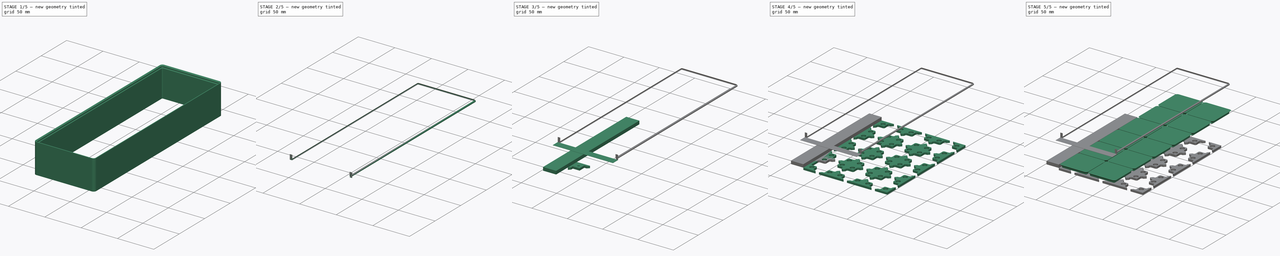
[diagram: build sequence overview — one tinted view per stage of 5, left to right]
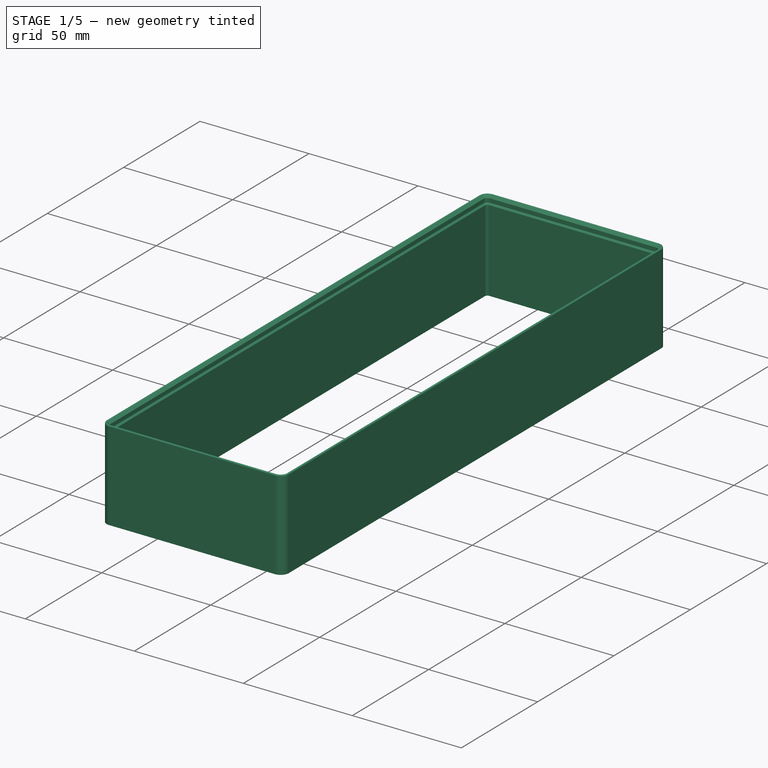
[diagram: stage 1 of 5 — iso view after this stage's code; geometry added in this stage tinted green]
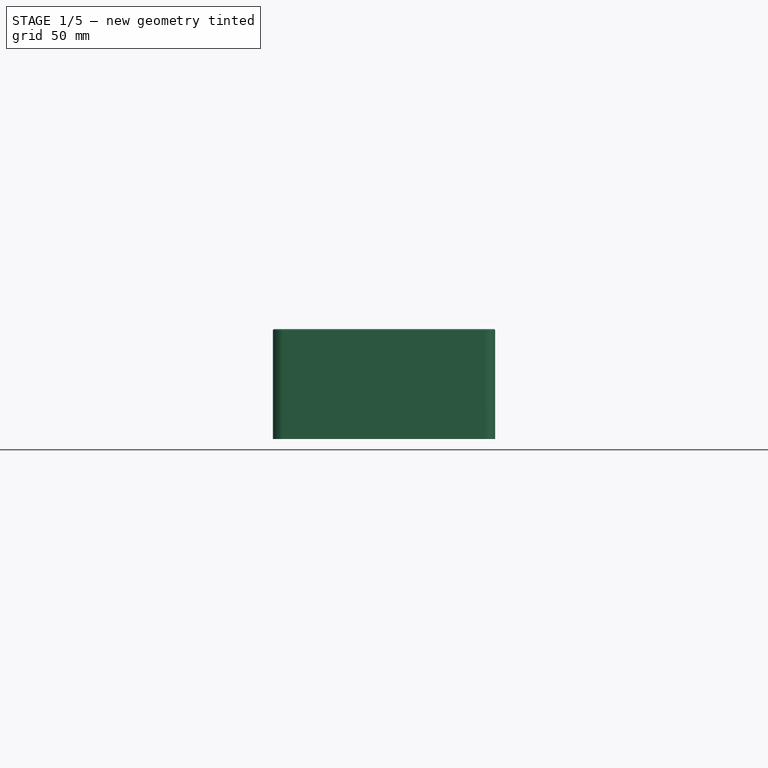
[diagram: stage 1 of 5 — front view after this stage's code; geometry added in this stage tinted green]
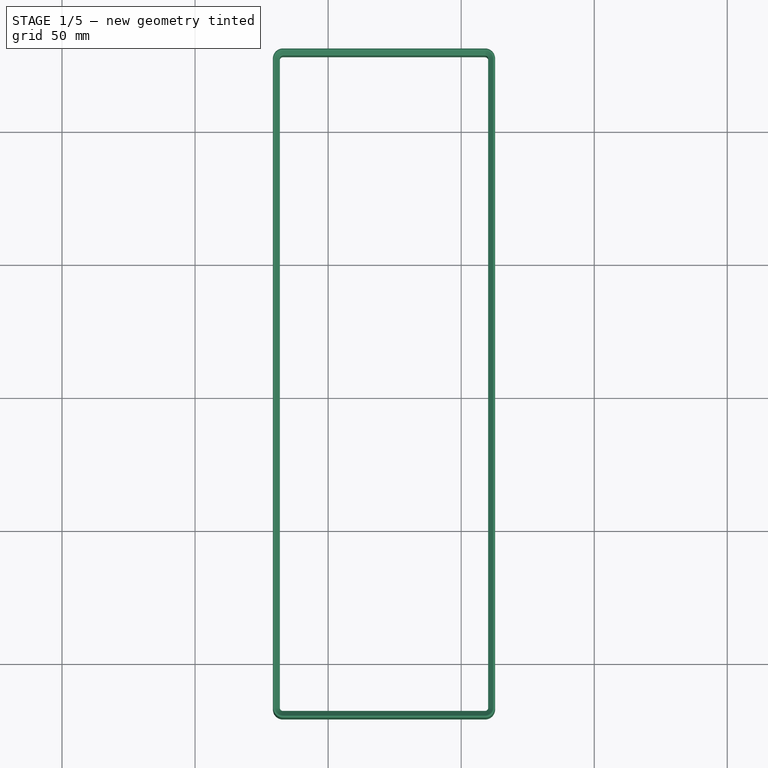
[diagram: stage 1 of 5 — top view after this stage's code; geometry added in this stage tinted green]
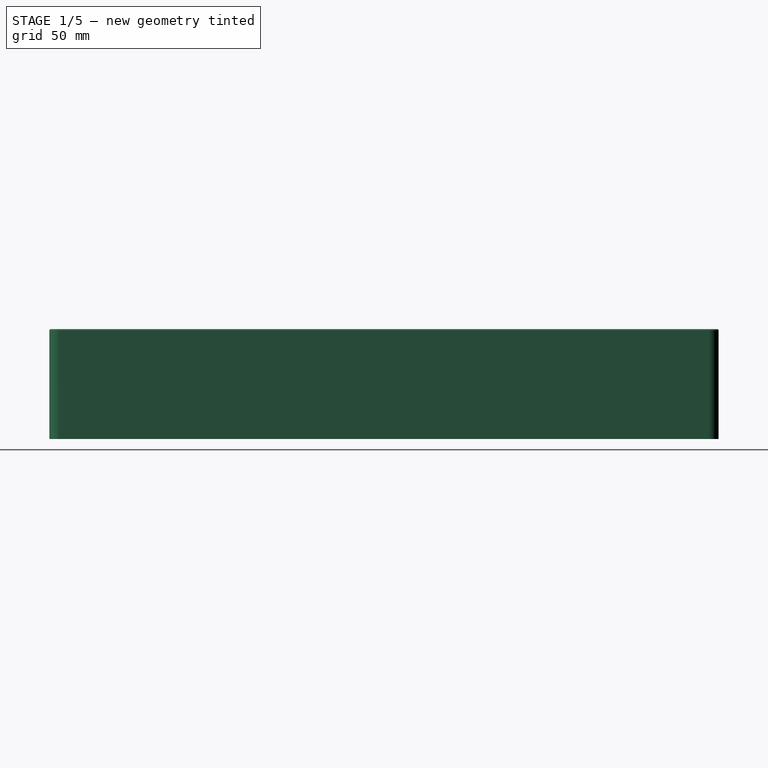
[diagram: stage 1 of 5 — right view after this stage's code; geometry added in this stage tinted green]
FCSTD DOCUMENT  (FreeCAD 1.0R38806 (Git))
Label: Opgave_4a
License: All rights reserved
LicenseURL: http://en.wikipedia.org/wiki/All_rights_reserved
objects: Sketcher::SketchObject×22, PartDesign::Body×8, PartDesign::Pad×8, PartDesign::SubShapeBinder×8, PartDesign::LinearPattern×7, PartDesign::MultiTransform×4, PartDesign::AdditivePipe×4, PartDesign::Plane×3, PartDesign::Pocket×2, Part::Feature×2, App::VarSet×1, PartDesign::SubtractivePipe×1, PartDesign::Mirrored×1, PartDesign::Chamfer×1, PartDesign::Fillet×1, PartDesign::PolarPattern×1, App::Part×1
note: 142 computed .brp shape members not serialized (recipe doc carries the construction recipe); baked Part::Feature solids carry a one-line shape summary decoded from their .brp

FEATURE [PartDesign::Body] Body004  label="BasketBucketInsert"
  AllowCompound = true
  Origin = -> Origin005
FEATURE [App::VarSet] VarSet
  BasePlateGridX = 3
  BasePlateGridY = 4
  BinFootGridX = 2
  BinFootGridY = 6
  BinOffset = 0.25
  BrimWidth = 18.5
  GridOuterRadius = 4
  GridProfileAngle = 45
  GridProfileHeight = 4.65
  GridProfileLower = 0.7
  GridProfileMiddle = 1.8
  GridProfileTop = 2.15
  GridSize = 42
  expr: GridProfileHeight = GridProfileTop + GridProfileMiddle + GridProfileLower
FEATURE [Sketcher::SketchObject] Sketch  label="BasePlateProfileXZCutOut"
  ArcFitTolerance = 1e-06
  AttachmentSupport = -> [XZ_Plane001]
  FullyConstrained = true
  MakeInternals = false
  MapMode = 5
  Placement = pos=(0,0,0) rot=(1,0,0;1.5708rad)
  expr: Constraints[10] = VarSet.GridProfileTop
  expr: Constraints[11] = VarSet.GridProfileMiddle
  expr: Constraints[12] = VarSet.GridProfileLower
  expr: Constraints[13] = VarSet.GridSize / 2
  expr: Constraints[9] = VarSet.GridProfileAngle
  sketch-geometry (5):
    g0: LineSegment StartX=-21 StartY=0 StartZ=0 EndX=-18.85 EndY=-2.15 EndZ=0
    g1: LineSegment StartX=-18.85 StartY=-2.15 StartZ=0 EndX=-18.85 EndY=-3.95 EndZ=0
    g2: LineSegment StartX=-18.85 StartY=-3.95 StartZ=0 EndX=-18.15 EndY=-4.65 EndZ=0
    g3: LineSegment StartX=-18.15 StartY=-4.65 StartZ=0 EndX=-18.15 EndY=0 EndZ=0
    g4: LineSegment StartX=-18.15 StartY=0 StartZ=0 EndX=-21 EndY=0 EndZ=0
  constraints (15):
    c: Coincident(g0,g1)
    c: Coincident(g1,g2)
    c: Coincident(g2,g3)
    c: Coincident(g3,g4)
    c: Coincident(g4,g0)
    c: Vertical(g3)
    c: Vertical(g1)
    c: Horizontal(g4)
    c: Parallel(g0,g2)
    c: Angle(g0,g4) = 0.785398
    c: DistanceY(g0,g0) = 2.15
    c: DistanceY(g1,g0) = 1.8
    c: DistanceY(g2,g1) = 0.7
    c: DistanceX(g0,g-1) = 21
    c: PointOnObject(g0,g-1)
FEATURE [Sketcher::SketchObject] Sketch001  label="BasePlateProfileXYCutOut"
  ArcFitTolerance = 1e-06
  AttachmentSupport = -> [XY_Plane001]
  ExternalGeometry = -> [Sketch]
  FullyConstrained = true
  MakeInternals = false
  MapMode = 5
  expr: Constraints[18] = VarSet.GridOuterRadius
  sketch-geometry (10):
    g0: LineSegment StartX=-17 StartY=-21 StartZ=0 EndX=17 EndY=-21 EndZ=0
    g1: LineSegment StartX=21 StartY=-17 StartZ=0 EndX=21 EndY=17 EndZ=0
    g2: LineSegment StartX=17 StartY=21 StartZ=0 EndX=-17 EndY=21 EndZ=0
    g3: LineSegment StartX=-21 StartY=17 StartZ=0 EndX=-21 EndY=-17 EndZ=0
    g4: ArcOfCircle CenterX=-17 CenterY=-17 CenterZ=0 NormalX=0 NormalY=0 NormalZ=1 AngleXU=0 Radius=4 StartAngle=3.14159 EndAngle=4.71239
    g5: ArcOfCircle CenterX=17 CenterY=-17 CenterZ=0 NormalX=0 NormalY=0 NormalZ=1 AngleXU=0 Radius=4 StartAngle=4.71239 EndAngle=6.28319
    g6: ArcOfCircle CenterX=17 CenterY=17 CenterZ=0 NormalX=0 NormalY=0 NormalZ=1 AngleXU=0 Radius=4 StartAngle=1e-16 EndAngle=1.5708
    g7: ArcOfCircle CenterX=-17 CenterY=17 CenterZ=0 NormalX=0 NormalY=0 NormalZ=1 AngleXU=0 Radius=4 StartAngle=1.5708 EndAngle=3.14159
    g8: GeomPoint [constr] X=21 Y=21 Z=0
    g9: GeomPoint [constr] X=0 Y=0 Z=0
  constraints (21):
    c: Tangent(g0,g4) = -1.5708
    c: Tangent(g0,g5) = -1.5708
    c: Tangent(g1,g5) = -1.5708
    c: Tangent(g1,g6) = -1.5708
    c: Tangent(g2,g6) = -1.5708
    c: Tangent(g2,g7) = -1.5708
    c: Tangent(g3,g7) = -1.5708
    c: Tangent(g3,g4) = -1.5708
    c: Horizontal(g0)
    c: Horizontal(g2)
    c: Vertical(g1)
    c: Vertical(g3)
    c: Equal(g4,g5)
    c: Equal(g5,g6)
    c: Symmetric(g2,g0,g9)
    c: PointOnObject(g8,g1)
    c: PointOnObject(g8,g2)
    c: Coincident(g9,g-1)
    c: Radius(g7) = 4
    c: Equal(g3,g2)
    c: Symmetric(g3,g3,g-3)
FEATURE [Sketcher::SketchObject] Sketch002  label="BasePlateProfileXY"
  ArcFitTolerance = 1e-06
  AttachmentSupport = -> [XY_Plane001]
  ExternalGeometry = -> [Sketch,Sketch001]
  FullyConstrained = true
  MakeInternals = false
  MapMode = 5
  sketch-geometry (15):
    g0: LineSegment StartX=-17 StartY=-18.15 StartZ=0 EndX=17 EndY=-18.15 EndZ=0
    g1: LineSegment StartX=18.15 StartY=-17 StartZ=0 EndX=18.15 EndY=17 EndZ=0
    g2: LineSegment StartX=17 StartY=18.15 StartZ=0 EndX=-17 EndY=18.15 EndZ=0
    g3: LineSegment StartX=-18.15 StartY=17 StartZ=0 EndX=-18.15 EndY=-17 EndZ=0
    g4: ArcOfCircle CenterX=-17 CenterY=-17 CenterZ=0 NormalX=0 NormalY=0 NormalZ=1 AngleXU=0 Radius=1.15 StartAngle=3.14159 EndAngle=4.71239
    g5: ArcOfCircle CenterX=17 CenterY=-17 CenterZ=0 NormalX=0 NormalY=0 NormalZ=1 AngleXU=0 Radius=1.15 StartAngle=4.71239 EndAngle=6.28319
    g6: ArcOfCircle CenterX=17 CenterY=17 CenterZ=0 NormalX=0 NormalY=0 NormalZ=1 AngleXU=0 Radius=1.15 StartAngle=-9e-16 EndAngle=1.5708
    g7: ArcOfCircle CenterX=-17 CenterY=17 CenterZ=0 NormalX=0 NormalY=0 NormalZ=1 AngleXU=0 Radius=1.15 StartAngle=1.5708 EndAngle=3.14159
    g8: GeomPoint [constr] X=18.15 Y=18.15 Z=0
    g9: GeomPoint [constr] X=0 Y=0 Z=0
    g10: LineSegment StartX=-21 StartY=-21 StartZ=0 EndX=21 EndY=-21 EndZ=0
    g11: LineSegment StartX=21 StartY=-21 StartZ=0 EndX=21 EndY=21 EndZ=0
    g12: LineSegment StartX=21 StartY=21 StartZ=0 EndX=-21 EndY=21 EndZ=0
    g13: LineSegment StartX=-21 StartY=21 StartZ=0 EndX=-21 EndY=-21 EndZ=0
    g14: GeomPoint [constr] X=0 Y=0 Z=0
  constraints (32):
    c: Tangent(g0,g4) = -1.5708
    c: Tangent(g0,g5) = -1.5708
    c: Tangent(g1,g5) = -1.5708
    c: Tangent(g1,g6) = -1.5708
    c: Tangent(g2,g6) = -1.5708
    c: Tangent(g2,g7) = -1.5708
    c: Tangent(g3,g7) = -1.5708
    c: Tangent(g3,g4) = -1.5708
    c: Horizontal(g0)
    c: Horizontal(g2)
    c: Vertical(g1)
    c: Vertical(g3)
    c: Equal(g4,g5)
    c: Equal(g5,g6)
    c: Symmetric(g2,g0,g9)
    c: PointOnObject(g8,g1)
    c: PointOnObject(g8,g2)
    c: Coincident(g9,g-1)
    c: Symmetric(g3,g3,g-3)
    c: Coincident(g4,g-4)
    c: Coincident(g10,g11)
    c: Coincident(g11,g12)
    c: Coincident(g12,g13)
    c: Coincident(g13,g10)
    c: Horizontal(g10)
    c: Horizontal(g12)
    c: Vertical(g11)
    c: Vertical(g13)
    c: Symmetric(g12,g10,g14)
    c: Coincident(g14,g9)
    c: Equal(g12,g13)
    c: Vertical(g-4,g10)
FEATURE [PartDesign::Pad] Pad
  Direction = (0,0,1)
  Length = 4.65
  Length2 = 10
  Profile = -> Sketch002
  ReferenceAxis = -> Sketch002 [N_Axis]
  Refine = true
  Reversed = true
  Suppressed = false
  Type = 0
  expr: Length = VarSet.GridProfileHeight
FEATURE [PartDesign::SubtractivePipe] SubtractivePipe
  AuxilleryCurvelinear = true
  AuxillerySpineTangent = false
  BaseFeature = -> Pad
  Binormal = (0,0,0)
  Mode = 0
  Profile = -> Sketch
  Refine = true
  Spine = -> Sketch001
  SpineTangent = false
  Suppressed = false
  Transformation = 0
  Transition = 0
FEATURE [PartDesign::LinearPattern] LinearPattern
  Direction = -> X_Axis001
  Length = 84
  Mode = 1
  Occurrences = 3
  Offset = 42
  Refine = true
  Suppressed = false
  TransformMode = 0
  expr: Occurrences = VarSet.BasePlateGridX
  expr: Offset = VarSet.GridSize
FEATURE [PartDesign::LinearPattern] LinearPattern001
  Direction = -> Y_Axis001
  Length = 126
  Mode = 1
  Occurrences = 4
  Offset = 42
  Refine = true
  Suppressed = false
  TransformMode = 0
  expr: Occurrences = VarSet.BasePlateGridY
  expr: Offset = VarSet.GridSize
FEATURE [PartDesign::MultiTransform] MultiTransform
  BaseFeature = -> SubtractivePipe
  Originals = -> [Pad,SubtractivePipe]
  Refine = true
  Suppressed = false
  TransformMode = 0
  Transformations = -> [LinearPattern,LinearPattern001]
FEATURE [PartDesign::Body] Body006  label="Brim"
  AllowCompound = true
  Group = -> [Sketch010,Pad003,MultiTransform003,LinearPattern006]
  Origin = -> Origin007
  Tip = -> MultiTransform003
FEATURE [PartDesign::SubShapeBinder] Binder004
  BindCopyOnChange = 0
  BindMode = 0
  ClaimChildren = false
  Context = -> Part [Body003.Binder004.]
  Fuse = false
  MakeFace = true
  OffsetFill = false
  OffsetIntersection = false
  OffsetJoinType = 0
  OffsetOpenResult = false
  PartialLoad = false
  Refine = true
  Relative = true
  Support = -> [Body[Sketch.]]
  _Version = 2
FEATURE [PartDesign::SubShapeBinder] Binder005
  BindCopyOnChange = 0
  BindMode = 0
  ClaimChildren = false
  Context = -> Part [Body003.Binder005.]
  Fuse = false
  MakeFace = true
  OffsetFill = false
  OffsetIntersection = false
  OffsetJoinType = 0
  OffsetOpenResult = false
  PartialLoad = false
  Refine = true
  Relative = true
  Support = -> [Body[Sketch001.]]
  _Version = 2
FEATURE [Sketcher::SketchObject] Sketch011
  ArcFitTolerance = 1e-06
  AttachmentSupport = -> [XZ_Plane004]
  ExternalGeometry = -> [Binder004]
  FullyConstrained = true
  MakeInternals = false
  MapMode = 5
  Placement = pos=(0,0,0) rot=(1,0,0;1.5708rad)
  expr: Constraints[18] = 7 * 6 + 0.25
  sketch-geometry (8):
    g0: LineSegment [constr] StartX=-21 StartY=42.25 StartZ=0 EndX=-18.85 EndY=40.1 EndZ=0
    g1: LineSegment StartX=-18.85 StartY=40.1 StartZ=0 EndX=-18.85 EndY=38.3 EndZ=0
    g2: LineSegment StartX=-18.85 StartY=38.3 StartZ=0 EndX=-18.15 EndY=37.6 EndZ=0
    g3: LineSegment StartX=-20.75 StartY=0 StartZ=0 EndX=-18.15 EndY=0 EndZ=0
    g4: LineSegment StartX=-18.15 StartY=0 StartZ=0 EndX=-18.15 EndY=37.6 EndZ=0
    g5: LineSegment StartX=-20.75 StartY=0 StartZ=0 EndX=-20.75 EndY=40.7929 EndZ=0
    g6: LineSegment StartX=-19.8964 StartY=41.1464 StartZ=0 EndX=-18.85 EndY=40.1 EndZ=0
    g7: ArcOfCircle CenterX=-20.25 CenterY=40.7929 CenterZ=0 NormalX=0 NormalY=0 NormalZ=1 AngleXU=0 Radius=0.5 StartAngle=0.785398 EndAngle=3.14159
  constraints (24):
    c: Coincident(g0,g1)
    c: Vertical(g1)
    c: Coincident(g1,g2)
    c: Vertical(g2,g-5)
    c: DistanceY(g2,g1) = 0.7
    c: DistanceY(g1,g0) = 1.8
    c: Vertical(g-3,g0)
    c: DistanceY(g0,g0) = 2.15
    c: Vertical(g4)
    c: DistanceX(g-3,g3) = 0.25
    c: PointOnObject(g3,g-1)
    c: Coincident(g4,g2)
    c: Coincident(g5,g3)
    c: Vertical(g5)
    c: Coincident(g6,g0)
    c: Coincident(g3,g4)
    c: Parallel(g-3,g6)
    c: Horizontal(g3)
    c: DistanceY(g-5,g2) = 42.25
    c: Tangent(g7,g5) = 1.5708
    c: Tangent(g7,g6) = 1.5708
    c: Radius(g7) = 0.5
    c: Parallel(g0,g6)
    c: DistanceY(g-1,g2) = 37.6
FEATURE [Sketcher::SketchObject] Sketch012
  ArcFitTolerance = 1e-06
  AttachmentSupport = -> [XY_Plane004]
  ExternalGeometry = -> [Binder005]
  FullyConstrained = true
  MakeInternals = false
  MapMode = 5
  expr: Constraints[20] = VarSet.GridSize * VarSet.BinFootGridY
  expr: Constraints[21] = VarSet.GridSize * VarSet.BinFootGridX
  sketch-geometry (10):
    g0: LineSegment StartX=59 StartY=231 StartZ=0 EndX=-17 EndY=231 EndZ=0
    g1: LineSegment StartX=-21 StartY=227 StartZ=0 EndX=-21 EndY=-17 EndZ=0
    g2: LineSegment StartX=-17 StartY=-21 StartZ=0 EndX=59 EndY=-21 EndZ=0
    g3: LineSegment StartX=63 StartY=-17 StartZ=0 EndX=63 EndY=227 EndZ=0
    g4: ArcOfCircle CenterX=59 CenterY=227 CenterZ=0 NormalX=0 NormalY=0 NormalZ=1 AngleXU=0 Radius=4 StartAngle=-9e-16 EndAngle=1.5708
    g5: ArcOfCircle CenterX=-17 CenterY=227 CenterZ=0 NormalX=0 NormalY=0 NormalZ=1 AngleXU=0 Radius=4 StartAngle=1.5708 EndAngle=3.14159
    g6: ArcOfCircle CenterX=-17 CenterY=-17 CenterZ=0 NormalX=0 NormalY=0 NormalZ=1 AngleXU=0 Radius=4 StartAngle=3.14159 EndAngle=4.71239
    g7: ArcOfCircle CenterX=59 CenterY=-17 CenterZ=0 NormalX=0 NormalY=0 NormalZ=1 AngleXU=0 Radius=4 StartAngle=4.71239 EndAngle=6.28319
    g8: GeomPoint [constr] X=63 Y=231 Z=0
    g9: GeomPoint [constr] X=-21 Y=-21 Z=0
  constraints (22):
    c: Tangent(g0,g4) = -1.5708
    c: Tangent(g0,g5) = -1.5708
    c: Tangent(g1,g5) = -1.5708
    c: Tangent(g1,g6) = -1.5708
    c: Tangent(g2,g6) = -1.5708
    c: Tangent(g2,g7) = -1.5708
    c: Tangent(g3,g7) = -1.5708
    c: Tangent(g3,g4) = -1.5708
    c: Horizontal(g0)
    c: Vertical(g1)
    c: Vertical(g3)
    c: Equal(g4,g5)
    c: Equal(g5,g6)
    c: Equal(g6,g7)
    c: PointOnObject(g8,g0)
    c: PointOnObject(g8,g3)
    c: PointOnObject(g9,g1)
    c: PointOnObject(g9,g2)
    c: Coincident(g2,g-3)
    c: Coincident(g6,g-3)
    c: DistanceY(g2,g0) = 252
    c: DistanceX(g1,g3) = 84
FEATURE [Sketcher::SketchObject] Sketch013
  ArcFitTolerance = 1e-06
  AttachmentSupport = -> [XY_Plane004]
  FullyConstrained = true
  MakeInternals = false
  MapMode = 5
  sketch-geometry (10):
    g0: LineSegment StartX=-17 StartY=-18.15 StartZ=0 EndX=59 EndY=-18.15 EndZ=0
    g1: LineSegment StartX=60.15 StartY=-17 StartZ=0 EndX=60.15 EndY=101 EndZ=0
    g2: LineSegment StartX=59 StartY=102.15 StartZ=0 EndX=-17 EndY=102.15 EndZ=0
    g3: LineSegment StartX=-18.15 StartY=101 StartZ=0 EndX=-18.15 EndY=-17 EndZ=0
    g4: ArcOfCircle CenterX=-17 CenterY=-17 CenterZ=0 NormalX=0 NormalY=0 NormalZ=1 AngleXU=0 Radius=1.15 StartAngle=3.14159 EndAngle=4.71239
    g5: ArcOfCircle CenterX=59 CenterY=-17 CenterZ=0 NormalX=0 NormalY=0 NormalZ=1 AngleXU=0 Radius=1.15 StartAngle=4.71239 EndAngle=6.28319
    g6: ArcOfCircle CenterX=59 CenterY=101 CenterZ=0 NormalX=0 NormalY=0 NormalZ=1 AngleXU=0 Radius=1.15 StartAngle=-1.95e-14 EndAngle=1.5708
    g7: ArcOfCircle CenterX=-17 CenterY=101 CenterZ=0 NormalX=0 NormalY=0 NormalZ=1 AngleXU=0 Radius=1.15 StartAngle=1.5708 EndAngle=3.14159
    g8: GeomPoint [constr] X=-18.15 Y=-18.15 Z=0
    g9: GeomPoint [constr] X=60.15 Y=102.15 Z=0
  constraints (21):
    c: Tangent(g0,g4) = -1.5708
    c: Tangent(g0,g5) = -1.5708
    c: Tangent(g1,g5) = -1.5708
    c: Tangent(g1,g6) = -1.5708
    c: Tangent(g2,g6) = -1.5708
    c: Tangent(g2,g7) = -1.5708
    c: Tangent(g3,g7) = -1.5708
    c: Tangent(g3,g4) = -1.5708
    c: Horizontal(g0)
    c: Horizontal(g2)
    c: Vertical(g3)
    c: Equal(g4,g5)
    c: Equal(g5,g6)
    c: Equal(g6,g7)
    c: PointOnObject(g8,g0)
    c: PointOnObject(g8,g3)
    c: PointOnObject(g9,g1)
    c: PointOnObject(g9,g2)
    c: Coincident(g1,g-3)
    c: Coincident(g6,g-3)
    c: Coincident(g4,g-4)
FEATURE [Sketcher::SketchObject] Sketch014
  ArcFitTolerance = 1e-06
  AttachmentOffset = pos=(0,0,36.6) rot=(0,0,1;0rad)
  AttachmentSupport = -> [XY_Plane004]
  ExternalGeometry = -> [Sketch011,Sketch012]
  FullyConstrained = true
  MakeInternals = false
  MapMode = 5
  Placement = pos=(0,0,36.6) rot=(0,0,1;0rad)
  sketch-geometry (10):
    g0: LineSegment StartX=-18.15 StartY=227 StartZ=0 EndX=-18.15 EndY=-17 EndZ=0
    g1: LineSegment StartX=-17 StartY=-18.15 StartZ=0 EndX=59 EndY=-18.15 EndZ=0
    g2: LineSegment StartX=60.15 StartY=-17 StartZ=0 EndX=60.15 EndY=227 EndZ=0
    g3: LineSegment StartX=59 StartY=228.15 StartZ=0 EndX=-17 EndY=228.15 EndZ=0
    g4: ArcOfCircle CenterX=-17 CenterY=227 CenterZ=0 NormalX=0 NormalY=0 NormalZ=1 AngleXU=0 Radius=1.15 StartAngle=1.5708 EndAngle=3.14159
    g5: ArcOfCircle CenterX=-17 CenterY=-17 CenterZ=0 NormalX=0 NormalY=0 NormalZ=1 AngleXU=0 Radius=1.15 StartAngle=3.14159 EndAngle=4.71239
    g6: ArcOfCircle CenterX=59 CenterY=-17 CenterZ=0 NormalX=0 NormalY=0 NormalZ=1 AngleXU=0 Radius=1.15 StartAngle=4.71239 EndAngle=6.28319
    g7: ArcOfCircle CenterX=59 CenterY=227 CenterZ=0 NormalX=0 NormalY=0 NormalZ=1 AngleXU=0 Radius=1.15 StartAngle=1.2e-14 EndAngle=1.5708
    g8: GeomPoint [constr] X=-18.15 Y=228.15 Z=0
    g9: GeomPoint [constr] X=60.15 Y=-18.15 Z=0
  constraints (22):
    c: Tangent(g0,g4) = -1.5708
    c: Tangent(g0,g5) = -1.5708
    c: Tangent(g1,g5) = -1.5708
    c: Tangent(g1,g6) = -1.5708
    c: Tangent(g2,g6) = -1.5708
    c: Tangent(g2,g7) = -1.5708
    c: Tangent(g3,g7) = -1.5708
    c: Tangent(g3,g4) = -1.5708
    c: Vertical(g0)
    c: Vertical(g2)
    c: Horizontal(g1)
    c: Horizontal(g3)
    c: Equal(g4,g5)
    c: Equal(g5,g6)
    c: Equal(g6,g7)
    c: PointOnObject(g8,g0)
    c: PointOnObject(g8,g3)
    c: PointOnObject(g9,g1)
    c: PointOnObject(g9,g2)
    c: Coincident(g5,g-4)
    c: PointOnObject(g-3,g0)
    c: Coincident(g-5,g7)
FEATURE [PartDesign::AdditivePipe] AdditivePipe004
  AuxilleryCurvelinear = true
  AuxillerySpineTangent = false
  Binormal = (0,0,0)
  Mode = 0
  Placement = pos=(0,0,0) rot=(1,0,0;1.5708rad)
  Profile = -> Sketch011
  Refine = true
  Spine = -> Sketch012
  SpineTangent = false
  Suppressed = false
  Transformation = 0
  Transition = 0
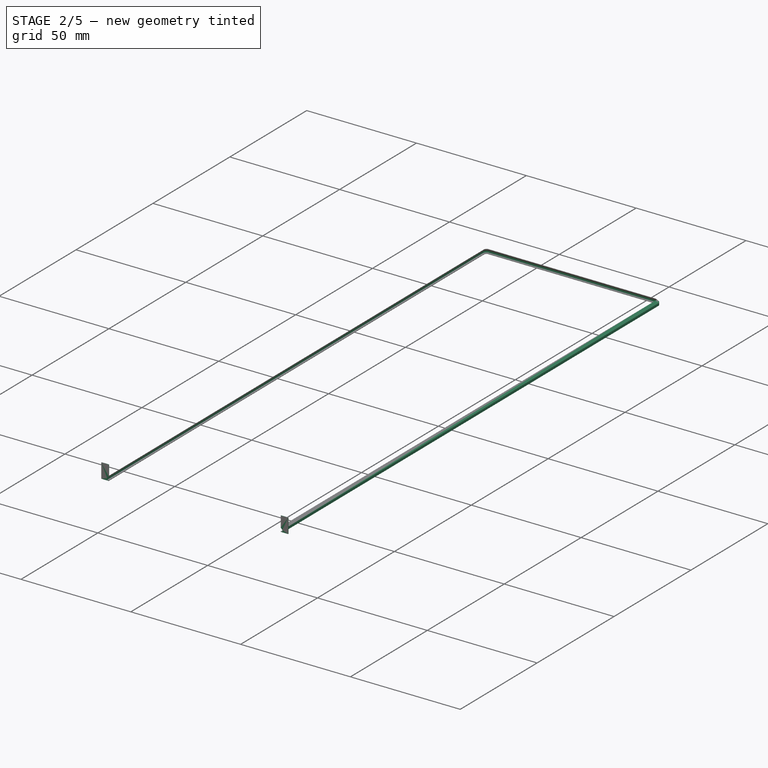
[diagram: stage 2 of 5 — iso view after this stage's code; geometry added in this stage tinted green]
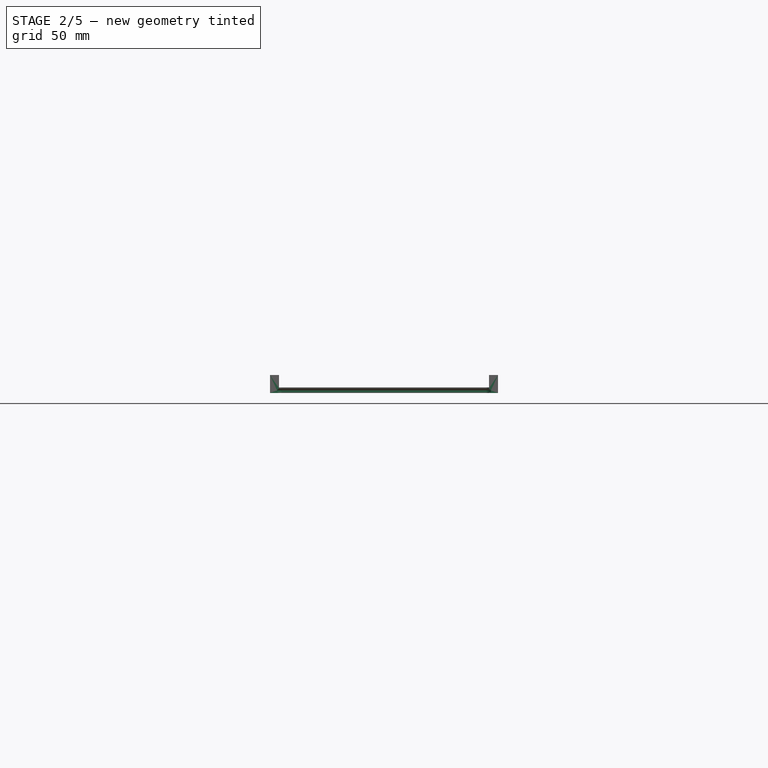
[diagram: stage 2 of 5 — front view after this stage's code; geometry added in this stage tinted green]
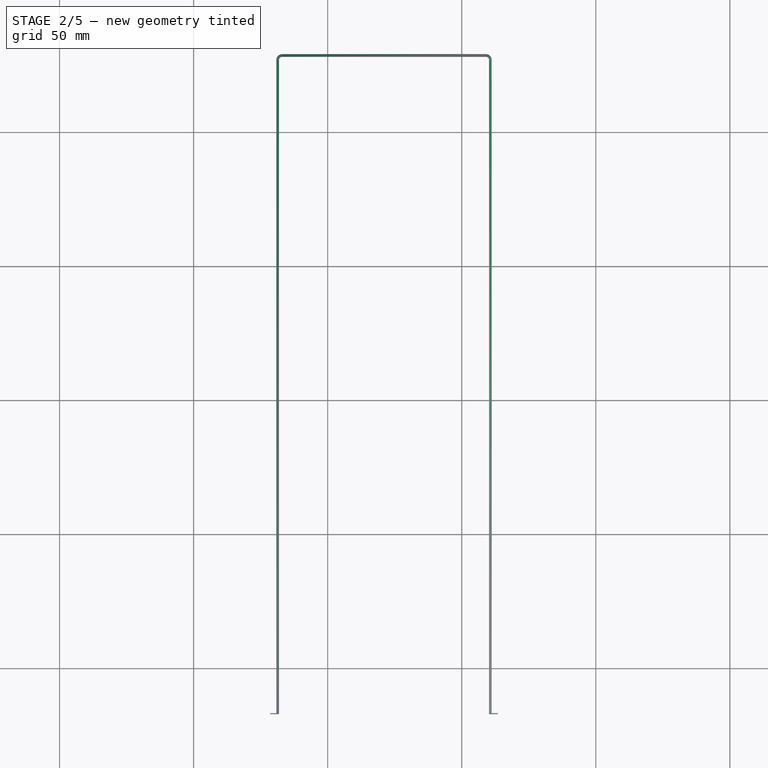
[diagram: stage 2 of 5 — top view after this stage's code; geometry added in this stage tinted green]
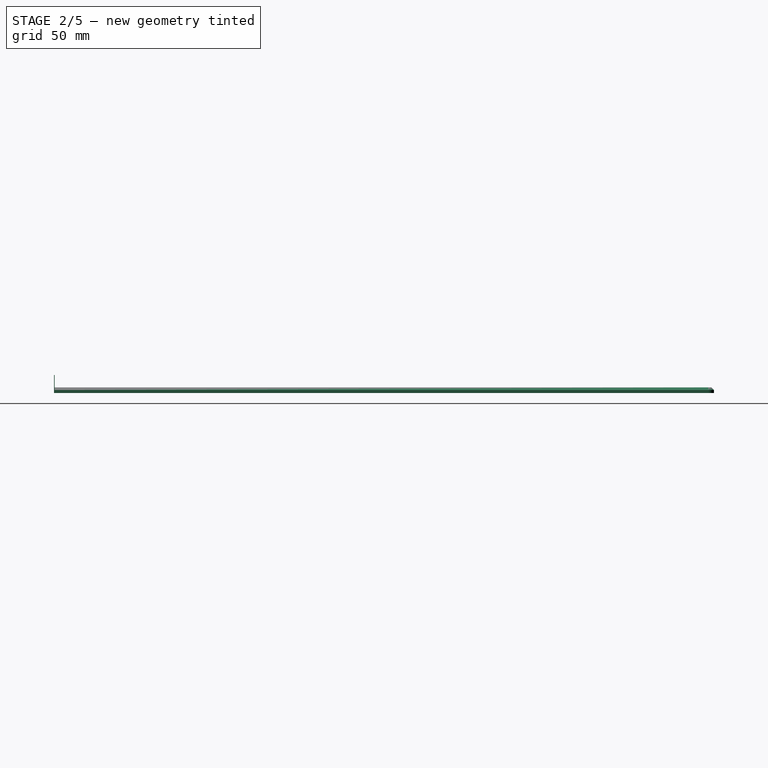
[diagram: stage 2 of 5 — right view after this stage's code; geometry added in this stage tinted green]
FEATURE [PartDesign::SubShapeBinder] Binder006
  BindCopyOnChange = 0
  BindMode = 0
  ClaimChildren = false
  Context = -> Part [Body007.Binder006.]
  Fuse = false
  MakeFace = true
  OffsetFill = false
  OffsetIntersection = false
  OffsetJoinType = 0
  OffsetOpenResult = false
  PartialLoad = false
  Refine = true
  Relative = true
  Support = -> [Body003[Sketch014.]]
  _Version = 2
FEATURE [Sketcher::SketchObject] Sketch015
  ArcFitTolerance = 1e-06
  AttachmentSupport = -> [XZ_Plane008]
  ExternalGeometry = -> [Binder006]
  FullyConstrained = true
  MakeInternals = false
  MapMode = 5
  Placement = pos=(0,0,0) rot=(1,0,0;1.5708rad)
  expr: Constraints[23] = 1.5 / 2
  sketch-geometry (10):
    g0: LineSegment StartX=-18.15 StartY=36.6 StartZ=0 EndX=-18.9 EndY=35.85 EndZ=0
    g1: LineSegment StartX=-18.9 StartY=35.85 StartZ=0 EndX=-18.9 EndY=35.1 EndZ=0
    g2: LineSegment StartX=-18.9 StartY=35.1 StartZ=0 EndX=-18.15 EndY=35.1 EndZ=0
    g3: LineSegment StartX=-18.15 StartY=36.9536 StartZ=0 EndX=-19.15 EndY=35.9536 EndZ=0
    g4: LineSegment StartX=-19.15 StartY=35.9536 StartZ=0 EndX=-19.15 EndY=34.85 EndZ=0
    g5: LineSegment StartX=-19.15 StartY=34.85 StartZ=0 EndX=-18.15 EndY=34.85 EndZ=0
    g6: LineSegment [constr] StartX=-18.15 StartY=36.6 StartZ=0 EndX=-18.3268 EndY=36.7768 EndZ=0
    g7: LineSegment [constr] StartX=-18.9 StartY=35.1 StartZ=0 EndX=-19.15 EndY=35.1 EndZ=0
    g8: LineSegment StartX=-18.15 StartY=35.1 StartZ=0 EndX=-18.15 EndY=34.85 EndZ=0
    g9: LineSegment StartX=-18.15 StartY=36.9536 StartZ=0 EndX=-18.15 EndY=36.6 EndZ=0
  constraints (29):
    c: Coincident(g0,g1)
    c: Vertical(g1)
    c: Coincident(g1,g2)
    c: Horizontal(g2)
    c: Vertical(g2,g-3)
    c: DistanceY(g2,g-3) = 1.5
    c: Coincident(g3,g4)
    c: Vertical(g4)
    c: Coincident(g4,g5)
    c: Horizontal(g5)
    c: Parallel(g3,g0)
    c: PointOnObject(g6,g3)
    c: Perpendicular(g0,g6)
    c: Distance(g6,g6) = 0.25
    c: Coincident(g7,g1)
    c: PointOnObject(g7,g4)
    c: Horizontal(g7)
    c: Equal(g7,g6)
    c: Coincident(g8,g2)
    c: Coincident(g8,g5)
    c: Vertical(g8)
    c: Equal(g8,g7)
    c: Coincident(g9,g3)
    c: DistanceY(g1,g0) = 0.75
    c: Coincident(g6,g0)
    c: Coincident(g6,g9)
    c: Coincident(g0,g-3)
    c: Vertical(g9)
    c: Angle(g1,g0) = 2.35619
FEATURE [Sketcher::SketchObject] Sketch016
  ArcFitTolerance = 1e-06
  AttachmentSupport = -> [XY_Plane008]
  ExternalGeometry = -> [Binder006]
  FullyConstrained = true
  MakeInternals = false
  MapMode = 5
  sketch-geometry (10):
    g0: LineSegment StartX=-18.15 StartY=227 StartZ=0 EndX=-18.15 EndY=-17 EndZ=0
    g1: LineSegment StartX=-17 StartY=-18.15 StartZ=0 EndX=59 EndY=-18.15 EndZ=0
    g2: LineSegment StartX=60.15 StartY=-17 StartZ=0 EndX=60.15 EndY=227 EndZ=0
    g3: LineSegment StartX=59 StartY=228.15 StartZ=0 EndX=-17 EndY=228.15 EndZ=0
    g4: ArcOfCircle CenterX=-17 CenterY=227 CenterZ=0 NormalX=0 NormalY=0 NormalZ=1 AngleXU=0 Radius=1.15 StartAngle=1.5708 EndAngle=3.14159
    g5: ArcOfCircle CenterX=-17 CenterY=-17 CenterZ=0 NormalX=0 NormalY=0 NormalZ=1 AngleXU=0 Radius=1.15 StartAngle=3.14159 EndAngle=4.71239
    g6: ArcOfCircle CenterX=59 CenterY=-17 CenterZ=0 NormalX=0 NormalY=0 NormalZ=1 AngleXU=0 Radius=1.15 StartAngle=4.71239 EndAngle=6.28319
    g7: ArcOfCircle CenterX=59 CenterY=227 CenterZ=0 NormalX=0 NormalY=0 NormalZ=1 AngleXU=0 Radius=1.15 StartAngle=7.3e-15 EndAngle=1.5708
    g8: GeomPoint [constr] X=-18.15 Y=228.15 Z=0
    g9: GeomPoint [constr] X=60.15 Y=-18.15 Z=0
  constraints (21):
    c: Tangent(g0,g4) = -1.5708
    c: Tangent(g0,g5) = -1.5708
    c: Tangent(g1,g5) = -1.5708
    c: Tangent(g1,g6) = -1.5708
    c: Tangent(g2,g6) = -1.5708
    c: Tangent(g2,g7) = -1.5708
    c: Tangent(g3,g7) = -1.5708
    c: Tangent(g3,g4) = -1.5708
    c: Vertical(g0)
    c: Horizontal(g1)
    c: Horizontal(g3)
    c: Equal(g4,g5)
    c: Equal(g5,g6)
    c: Equal(g6,g7)
    c: PointOnObject(g8,g0)
    c: PointOnObject(g8,g3)
    c: PointOnObject(g9,g1)
    c: PointOnObject(g9,g2)
    c: Coincident(g7,g-3)
    c: Coincident(g2,g-3)
    c: Coincident(g5,g-4)
FEATURE [PartDesign::SubShapeBinder] Binder007
  BindCopyOnChange = 0
  BindMode = 0
  ClaimChildren = false
  Context = -> Part [Body007.Binder007.]
  Fuse = false
  MakeFace = true
  OffsetFill = false
  OffsetIntersection = false
  OffsetJoinType = 0
  OffsetOpenResult = false
  PartialLoad = false
  Refine = true
  Relative = true
  Support = -> [Body003[Sketch011.]]
  _Version = 2
FEATURE [PartDesign::Plane] DatumPlane001
  AttachmentOffset = pos=(0,0,21) rot=(0,0,1;0rad)
  AttachmentSupport = -> [YZ_Plane008]
  Length = 282.268
  MapMode = 5
  Placement = pos=(21,0,0) rot=(0.57735,0.57735,0.57735;2.0944rad)
  ResizeMode = 0
  Width = 92.6961
FEATURE [Sketcher::SketchObject] Sketch017
  ArcFitTolerance = 1e-06
  AttachmentOffset = pos=(0,0,17) rot=(0,0,1;0rad)
  AttachmentSupport = -> [XZ_Plane008]
  ExternalGeometry = -> [Binder007,Sketch015,DatumPlane001]
  FullyConstrained = false
  MakeInternals = false
  MapMode = 5
  Placement = pos=(0,-17,3.8e-15) rot=(1,0,0;1.5708rad)
  expr: .AttachmentOffset.Base.z = 21 mm - 4 mm
  sketch-geometry (16):
    g0: LineSegment StartX=-20.75 StartY=41.2929 StartZ=0 EndX=-20.75 EndY=34.85 EndZ=0
    g1: LineSegment StartX=-18.15 StartY=41.2929 StartZ=0 EndX=-18.15 EndY=36.6 EndZ=0
    g2: LineSegment StartX=-18.15 StartY=36.6 StartZ=0 EndX=-18.9 EndY=35.85 EndZ=0
    g3: LineSegment StartX=-18.9 StartY=35.85 StartZ=0 EndX=-18.9 EndY=35.1 EndZ=0
    g4: LineSegment StartX=-20.75 StartY=41.2929 StartZ=0 EndX=-18.15 EndY=41.2929 EndZ=0
    g5: LineSegment StartX=-20.75 StartY=34.85 StartZ=0 EndX=-18.15 EndY=34.85 EndZ=0
    g6: LineSegment StartX=-18.15 StartY=34.85 StartZ=0 EndX=-18.15 EndY=35.1 EndZ=0
    g7: LineSegment StartX=-18.15 StartY=35.1 StartZ=0 EndX=-18.9 EndY=35.1 EndZ=0
    g8: LineSegment StartX=62.75 StartY=41.2929 StartZ=0 EndX=62.75 EndY=34.85 EndZ=0
    g9: LineSegment StartX=60.15 StartY=41.2929 StartZ=0 EndX=60.15 EndY=36.6 EndZ=0
    g10: LineSegment StartX=60.15 StartY=36.6 StartZ=0 EndX=60.9 EndY=35.85 EndZ=0
    g11: LineSegment StartX=60.9 StartY=35.85 StartZ=0 EndX=60.9 EndY=35.1 EndZ=0
    g12: LineSegment StartX=62.75 StartY=41.2929 StartZ=0 EndX=60.15 EndY=41.2929 EndZ=0
    g13: LineSegment StartX=62.75 StartY=34.85 StartZ=0 EndX=60.15 EndY=34.85 EndZ=0
    g14: LineSegment StartX=60.15 StartY=34.85 StartZ=0 EndX=60.15 EndY=35.1 EndZ=0
    g15: LineSegment StartX=60.15 StartY=35.1 StartZ=0 EndX=60.9 EndY=35.1 EndZ=0
  constraints (28):
    c: Vertical(g0)
    c: Vertical(g0,g-3)
    c: Coincident(g1,g-4)
    c: Vertical(g1)
    c: Coincident(g1,g2)
    c: Coincident(g2,g-4)
    c: Coincident(g2,g3)
    c: Coincident(g3,g-5)
    c: Coincident(g1,g4)
    c: Horizontal(g4)
    c: Coincident(g0,g4)
    c: Tangent(g4,g-3)
    c: Coincident(g0,g5)
    c: Coincident(g5,g-6)
    c: Horizontal(g5)
    c: Coincident(g5,g6)
    c: Vertical(g6)
    c: Coincident(g6,g7)
    c: Horizontal(g7)
    c: Coincident(g7,g3)
    c: Coincident(g9,g10)
    c: Coincident(g10,g11)
    c: Coincident(g9,g12)
    c: Coincident(g8,g12)
    c: Coincident(g8,g13)
    c: Coincident(g13,g14)
    c: Coincident(g14,g15)
    c: Coincident(g15,g11)
FEATURE [Sketcher::SketchObject] Sketch018
  ArcFitTolerance = 1e-06
  FullyConstrained = true
  MakeInternals = false
  MapMode = 5
  Placement = pos=(0,-17,9.9e-15) rot=(1,0,0;1.5708rad)
  sketch-geometry (4):
    g0: LineSegment StartX=-20.75 StartY=35.1 StartZ=0 EndX=-20.75 EndY=34.85 EndZ=0
    g1: LineSegment StartX=-20.75 StartY=34.85 StartZ=0 EndX=62.75 EndY=34.85 EndZ=0
    g2: LineSegment StartX=62.75 StartY=34.85 StartZ=0 EndX=62.75 EndY=35.1 EndZ=0
    g3: LineSegment StartX=62.75 StartY=35.1 StartZ=0 EndX=-20.75 EndY=35.1 EndZ=0
  constraints (10):
    c: Coincident(g0,g1)
    c: Coincident(g1,g2)
    c: Coincident(g2,g3)
    c: Coincident(g3,g0)
    c: Vertical(g0)
    c: Vertical(g2)
    c: Horizontal(g3)
    c: Coincident(g0,g-3)
    c: PointOnObject(g-4,g3)
    c: Coincident(g1,g-5)
FEATURE [PartDesign::AdditivePipe] AdditivePipe005
  AuxilleryCurvelinear = true
  AuxillerySpineTangent = false
  Binormal = (0,0,0)
  Mode = 0
  Placement = pos=(0,0,0) rot=(1,0,0;1.5708rad)
  Profile = -> Sketch015
  Refine = true
  Spine = -> Sketch016
  SpineTangent = false
  Suppressed = false
  Transformation = 0
  Transition = 0
FEATURE [PartDesign::Plane] DatumPlane002
  AttachmentOffset = pos=(0,0,21) rot=(0,0,1;0rad)
  Length = 282.268
  MapMode = 4
  Placement = pos=(21,0,0) rot=(0.57735,0.57735,0.57735;2.0944rad)
  ResizeMode = 0
  Width = 92.6961
FEATURE [Sketcher::SketchObject] Sketch019
  ArcFitTolerance = 1e-06
  AttachmentOffset = pos=(0,0,17) rot=(0,0,1;0rad)
  AttachmentSupport = -> [XZ_Plane008]
  ExternalGeometry = -> [Sketch015,DatumPlane002]
  FullyConstrained = false
  MakeInternals = false
  MapMode = 5
  Placement = pos=(0,-17,3.8e-15) rot=(1,0,0;1.5708rad)
  expr: .AttachmentOffset.Base.z = 21 - 4
  sketch-geometry (12):
    g0: LineSegment StartX=-18.15 StartY=36.9536 StartZ=0 EndX=-18.15 EndY=41.5779 EndZ=0
    g1: LineSegment StartX=-18.15 StartY=41.5779 StartZ=0 EndX=-21.5415 EndY=41.5779 EndZ=0
    g2: LineSegment StartX=-21.5415 StartY=41.5779 StartZ=0 EndX=-21.5415 EndY=34.85 EndZ=0
    g3: LineSegment StartX=-21.5415 StartY=34.85 StartZ=0 EndX=-19.15 EndY=34.85 EndZ=0
    g4: LineSegment StartX=-19.15 StartY=34.85 StartZ=0 EndX=-19.15 EndY=35.9536 EndZ=0
    g5: LineSegment StartX=-19.15 StartY=35.9536 StartZ=0 EndX=-18.15 EndY=36.9536 EndZ=0
    g6: LineSegment StartX=60.15 StartY=36.9536 StartZ=0 EndX=60.15 EndY=41.5779 EndZ=0
    g7: LineSegment StartX=60.15 StartY=41.5779 StartZ=0 EndX=63.5415 EndY=41.5779 EndZ=0
    g8: LineSegment StartX=63.5415 StartY=41.5779 StartZ=0 EndX=63.5415 EndY=34.85 EndZ=0
    g9: LineSegment StartX=63.5415 StartY=34.85 StartZ=0 EndX=61.15 EndY=34.85 EndZ=0
    g10: LineSegment StartX=61.15 StartY=34.85 StartZ=0 EndX=61.15 EndY=35.9536 EndZ=0
    g11: LineSegment StartX=61.15 StartY=35.9536 StartZ=0 EndX=60.15 EndY=36.9536 EndZ=0
  constraints (19):
    c: Coincident(g-3,g0)
    c: Vertical(g0)
    c: Coincident(g0,g1)
    c: Horizontal(g1)
    c: Coincident(g1,g2)
    c: Vertical(g2)
    c: Coincident(g2,g3)
    c: Horizontal(g3)
    c: Coincident(g3,g4)
    c: Coincident(g4,g5)
    c: Coincident(g5,g0)
    c: Coincident(g4,g-3)
    c: Coincident(g3,g-4)
    c: Coincident(g6,g7)
    c: Coincident(g7,g8)
    c: Coincident(g8,g9)
    c: Coincident(g9,g10)
    c: Coincident(g10,g11)
    c: Coincident(g11,g6)
FEATURE [PartDesign::Pad] Pad008
  BaseFeature = -> AdditivePipe005
  Direction = (0,-1,2e-16)
  Length = 0.25
  Length2 = 10
  Placement = pos=(0,0,0) rot=(1,0,0;1.5708rad)
  Profile = -> Sketch019
  ReferenceAxis = -> Sketch019 [N_Axis]
  Refine = true
  Reversed = true
  Suppressed = false
  Type = 0
FEATURE [Sketcher::SketchObject] Sketch020
  ArcFitTolerance = 1e-06
  AttachmentSupport = -> [Pad008]
  ExternalGeometry = -> [Pad008]
  FullyConstrained = true
  MakeInternals = false
  MapMode = 5
  Placement = pos=(0,-17,9.6e-15) rot=(1,0,0;1.5708rad)
  sketch-geometry (4):
    g0: LineSegment StartX=-21.5415 StartY=34.85 StartZ=0 EndX=-21.5415 EndY=35.1 EndZ=0
    g1: LineSegment StartX=-21.5415 StartY=35.1 StartZ=0 EndX=63.5415 EndY=35.1 EndZ=0
    g2: LineSegment StartX=63.5415 StartY=35.1 StartZ=0 EndX=63.5415 EndY=34.85 EndZ=0
    g3: LineSegment StartX=63.5415 StartY=34.85 StartZ=0 EndX=-21.5415 EndY=34.85 EndZ=0
  constraints (11):
    c: Coincident(g0,g1)
    c: Coincident(g1,g2)
    c: Coincident(g2,g3)
    c: Coincident(g3,g0)
    c: Vertical(g0)
    c: Vertical(g2)
    c: Horizontal(g1)
    c: Vertical(g-3,g0)
    c: Horizontal(g3)
    c: Coincident(g2,g-4)
    c: DistanceY(g2,g2) = 0.25
FEATURE [Sketcher::SketchObject] Sketch021
  ArcFitTolerance = 1e-06
  AttachmentSupport = -> [XY_Plane008]
  ExternalGeometry = -> [Sketch020]
  FullyConstrained = false
  MakeInternals = false
  MapMode = 5
  sketch-geometry (4):
    g0: LineSegment StartX=-36.0468 StartY=-17 StartZ=0 EndX=-36.0468 EndY=-32.3727 EndZ=0
    g1: LineSegment StartX=-36.0468 StartY=-32.3727 StartZ=0 EndX=65.2717 EndY=-32.3727 EndZ=0
    g2: LineSegment StartX=65.2717 StartY=-32.3727 StartZ=0 EndX=65.2717 EndY=-17 EndZ=0
    g3: LineSegment StartX=65.2717 StartY=-17 StartZ=0 EndX=-36.0468 EndY=-17 EndZ=0
  constraints (9):
    c: Coincident(g0,g1)
    c: Coincident(g1,g2)
    c: Coincident(g2,g3)
    c: Coincident(g3,g0)
    c: Vertical(g0)
    c: Vertical(g2)
    c: Horizontal(g1)
    c: Horizontal(g3)
    c: Horizontal(g0,g-3)
FEATURE [PartDesign::Pocket] Pocket001
  BaseFeature = -> Pad008
  Direction = (0,0,-1)
  Length = 5
  Length2 = 5
  Placement = pos=(0,0,0) rot=(1,0,0;1.5708rad)
  Profile = -> Sketch021
  ReferenceAxis = -> Sketch021 [N_Axis]
  Refine = true
  Reversed = true
  Suppressed = false
  Type = 1
FEATURE [PartDesign::Body] Body007  label="Extrude"
  AllowCompound = true
  Group = -> [Binder006,Sketch015,Sketch016,Binder007,Sketch017,DatumPlane001,Sketch018,AdditivePipe005,Sketch019,Pad008,DatumPlane002,Sketch020,Sketch021,Pocket001,Pad009]
  Origin = -> Origin008
  Tip = -> Pad009
FEATURE [PartDesign::Pad] Pad010
  BaseFeature = -> AdditivePipe004
  Direction = (0,0,1)
  Length = 1
  Length2 = 10
  Placement = pos=(0,0,0) rot=(1,0,0;1.5708rad)
  Profile = -> Sketch012
  ReferenceAxis = -> Sketch012 [N_Axis]
  Refine = true
  Suppressed = false
  Type = 0
FEATURE [PartDesign::Pad] Pad007
  BaseFeature = -> Pad010
  Direction = (0,0,1)
  Length = 1.5
  Length2 = 10
  Placement = pos=(0,0,0) rot=(1,0,0;1.5708rad)
  Profile = -> Sketch014
  ReferenceAxis = -> Sketch014 [N_Axis]
  Refine = true
  Reversed = true
  Suppressed = false
  Type = 0
FEATURE [PartDesign::Body] Body003  label="BasketBucket"
  AllowCompound = true
  Group = -> [Binder004,Binder005,Sketch011,Sketch012,Sketch013,Sketch014,AdditivePipe004,Pad010,Pad007]
  Origin = -> Origin004
  Tip = -> Pad007
FEATURE [App::Part] Part
  Group = -> [Body,Body001,Body002,Body004,VarSet,Body005,Body006,Body003,Body007]
  Origin = -> Origin
FEATURE [Part::Feature] Solid
  shape: bbox 84.12 x 252.1 x 41.29 mm, 65 faces (baked)
FEATURE [Part::Feature] Solid001
  shape: bbox 84.12 x 250 x 6.193 mm, 32 faces (baked)
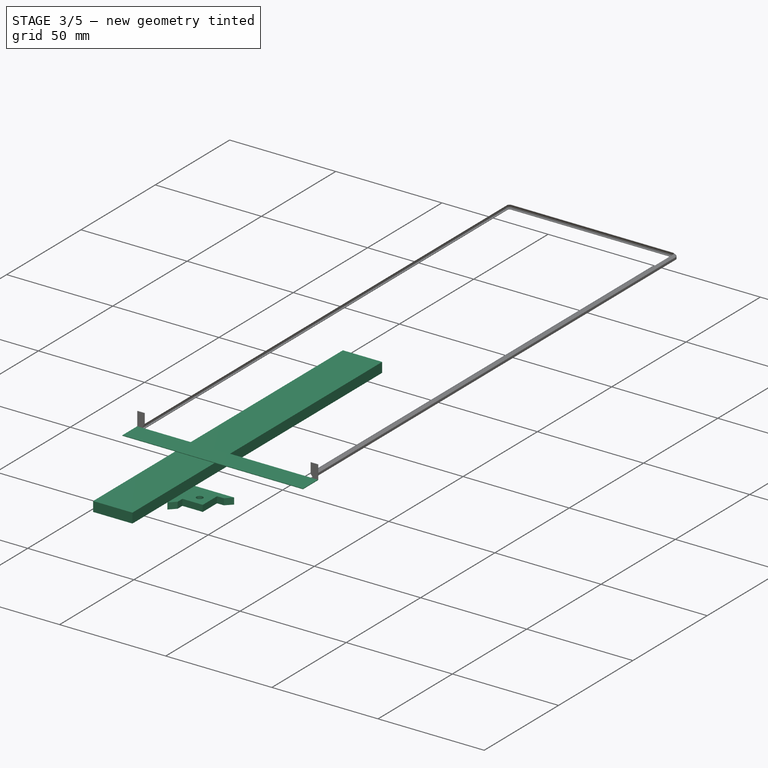
[diagram: stage 3 of 5 — iso view after this stage's code; geometry added in this stage tinted green]
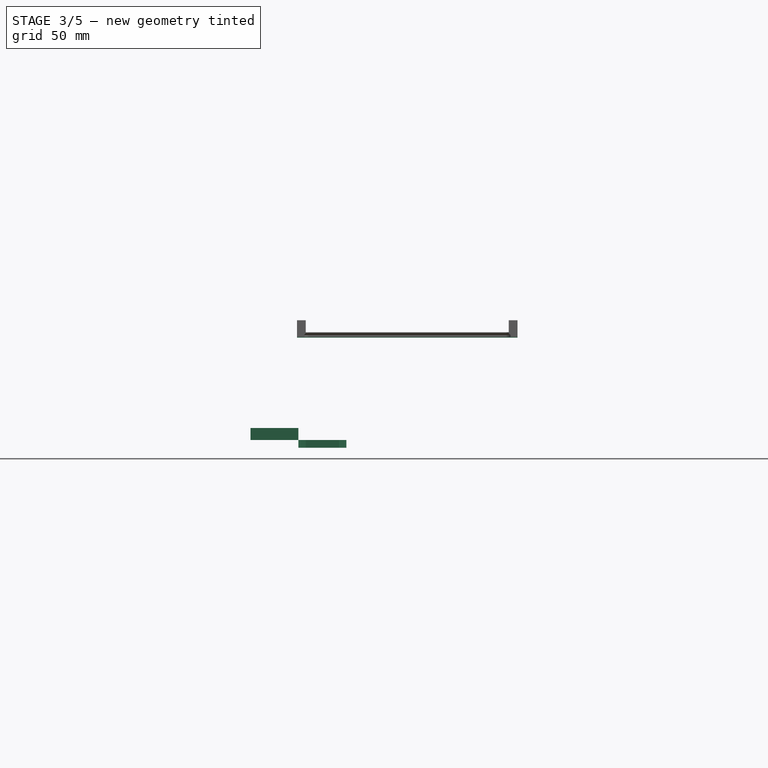
[diagram: stage 3 of 5 — front view after this stage's code; geometry added in this stage tinted green]
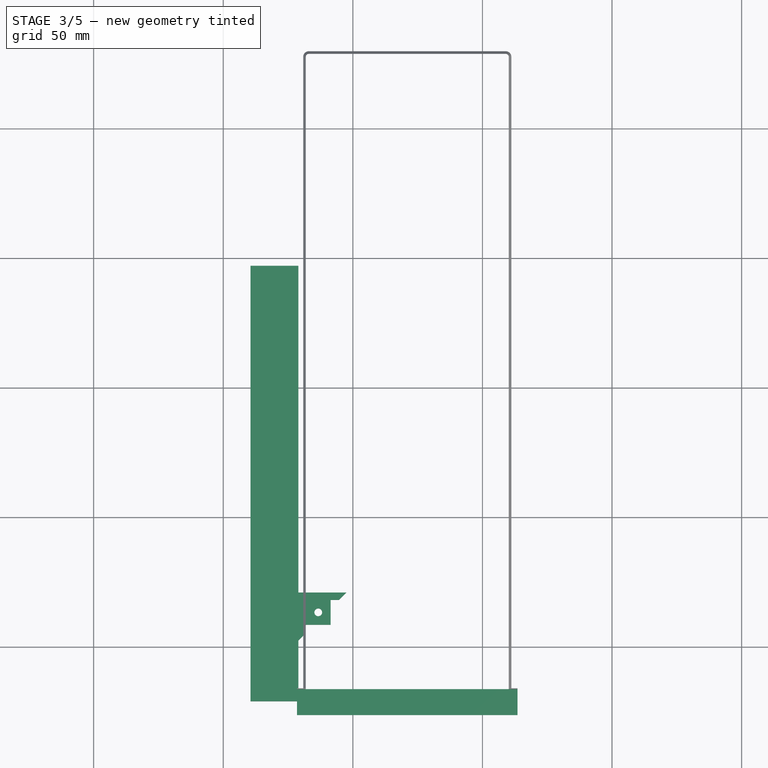
[diagram: stage 3 of 5 — top view after this stage's code; geometry added in this stage tinted green]
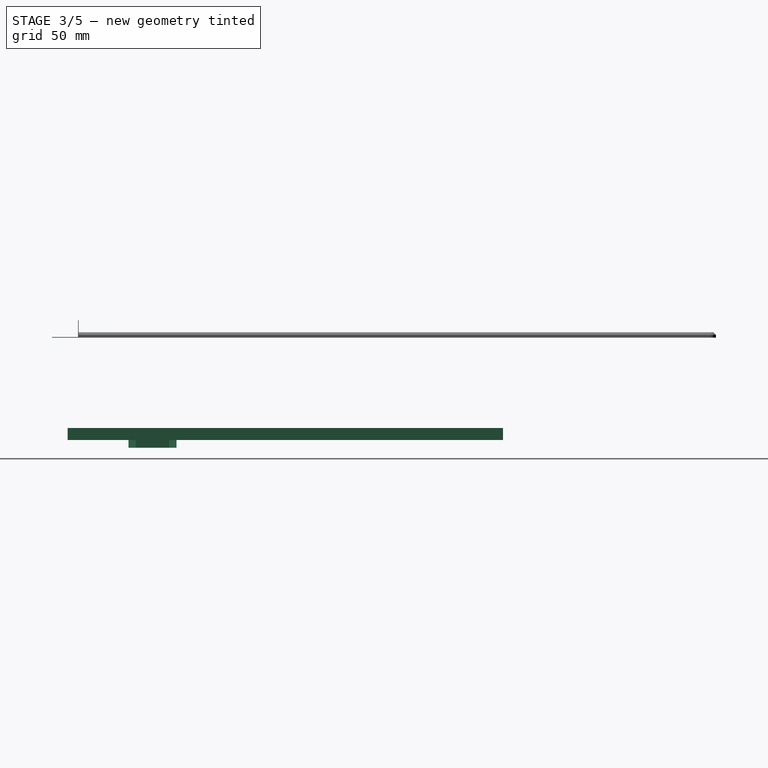
[diagram: stage 3 of 5 — right view after this stage's code; geometry added in this stage tinted green]
FEATURE [PartDesign::Body] Body002  label="BasketFoot"
  AllowCompound = true
  Group = -> [Binder,Binder001,Sketch003,Sketch004,AdditivePipe,Sketch005,Sketch006,AdditivePipe001,MultiTransform001,LinearPattern002,LinearPattern003]
  Origin = -> Origin003
  Tip = -> MultiTransform001
FEATURE [PartDesign::SubShapeBinder] Binder002
  BindCopyOnChange = 0
  BindMode = 0
  ClaimChildren = false
  Context = -> Part [Body001.Binder002.]
  Fuse = false
  MakeFace = true
  OffsetFill = false
  OffsetIntersection = false
  OffsetJoinType = 0
  OffsetOpenResult = false
  PartialLoad = false
  Refine = true
  Relative = true
  Support = -> [Body[Sketch002.]]
  _Version = 2
FEATURE [Sketcher::SketchObject] Sketch007
  ArcFitTolerance = 1e-06
  AttachmentOffset = pos=(0,0,-4.65) rot=(0,0,1;0rad)
  AttachmentSupport = -> [XY_Plane002]
  ExternalGeometry = -> [Binder002]
  FullyConstrained = true
  MakeInternals = false
  MapMode = 5
  Placement = pos=(0,0,-4.65) rot=(0,0,1;0rad)
  expr: .AttachmentOffset.Base.z = -VarSet.GridProfileHeight
  sketch-geometry (11):
    g0: LineSegment StartX=-2.5 StartY=21 StartZ=0 EndX=-21 EndY=21 EndZ=0
    g1: LineSegment StartX=-21 StartY=21 StartZ=0 EndX=-21 EndY=2.5 EndZ=0
    g2: LineSegment StartX=-21 StartY=2.5 StartZ=0 EndX=-18.15 EndY=5.35 EndZ=0
    g3: LineSegment [constr] StartX=-18.15 StartY=5.35 StartZ=0 EndX=-18.15 EndY=17 EndZ=0
    g4: LineSegment [constr] StartX=-17 StartY=18.15 StartZ=0 EndX=-5.35 EndY=18.15 EndZ=0
    g5: LineSegment StartX=-5.35 StartY=18.15 StartZ=0 EndX=-2.5 EndY=21 EndZ=0
    g6: LineSegment StartX=-18.15 StartY=8.55 StartZ=0 EndX=-18.15 EndY=5.35 EndZ=0
    g7: LineSegment StartX=-18.15 StartY=8.55 StartZ=0 EndX=-8.55 EndY=8.55 EndZ=0
    g8: LineSegment StartX=-8.55 StartY=8.55 StartZ=0 EndX=-8.55 EndY=18.15 EndZ=0
    g9: LineSegment StartX=-8.55 StartY=18.15 StartZ=0 EndX=-5.35 EndY=18.15 EndZ=0
    g10: Circle CenterX=-13.35 CenterY=13.35 CenterZ=0 NormalX=0 NormalY=0 NormalZ=1 AngleXU=0 Radius=1.5
  constraints (29):
    c: Coincident(g0,g-4)
    c: Horizontal(g0)
    c: Coincident(g0,g1)
    c: Vertical(g1)
    c: Coincident(g1,g2)
    c: Coincident(g2,g3)
    c: Coincident(g3,g-3)
    c: Vertical(g3)
    c: Tangent(g-3,g4) = 1.5708
    c: Coincident(g4,g5)
    c: Coincident(g5,g0)
    c: Parallel(g5,g2)
    c: Equal(g1,g0)
    c: DistanceX(g0,g-1) = 2.5
    c: Angle(g5,g-2) = 0.785398
    c: PointOnObject(g6,g3)
    c: Coincident(g6,g2)
    c: Coincident(g6,g7)
    c: Horizontal(g7)
    c: Coincident(g7,g8)
    c: PointOnObject(g8,g4)
    c: Vertical(g8)
    c: Coincident(g8,g9)
    c: Coincident(g9,g4)
    c: Equal(g8,g7)
    c: Diameter(g10) = 3
    c: DistanceX(g6,g10) = 4.8
    c: Symmetric(g6,g8,g10)
    c: DistanceX(g1,g-1) = 21
FEATURE [PartDesign::Pad] Pad001
  Direction = (0,0,1)
  Length = 3
  Length2 = 10
  Profile = -> Sketch007
  ReferenceAxis = -> Sketch007 [N_Axis]
  Refine = true
  Reversed = true
  Suppressed = false
  Type = 0
FEATURE [PartDesign::Body] Body001  label="BaseplateFoot"
  AllowCompound = true
  Group = -> [Binder002,Sketch007,Pad001,Sketch009,Pocket,Fillet,MultiTransform002,PolarPattern,LinearPattern004,LinearPattern005]
  Origin = -> Origin002
  Tip = -> MultiTransform002
FEATURE [Sketcher::SketchObject] Sketch010
  ArcFitTolerance = 1e-06
  AttachmentSupport = -> [XY_Plane007]
  FullyConstrained = true
  MakeInternals = false
  MapMode = 5
  expr: Constraints[7] = VarSet.GridSize
  expr: Constraints[8] = VarSet.GridSize / 2
  expr: Constraints[9] = VarSet.BrimWidth
  sketch-geometry (4):
    g0: LineSegment StartX=-39.5 StartY=21 StartZ=0 EndX=-39.5 EndY=-21 EndZ=0
    g1: LineSegment StartX=-39.5 StartY=-21 StartZ=0 EndX=-21 EndY=-21 EndZ=0
    g2: LineSegment StartX=-21 StartY=-21 StartZ=0 EndX=-21 EndY=21 EndZ=0
    g3: LineSegment StartX=-21 StartY=21 StartZ=0 EndX=-39.5 EndY=21 EndZ=0
  constraints (11):
    c: Coincident(g0,g1)
    c: Coincident(g1,g2)
    c: Coincident(g2,g3)
    c: Coincident(g3,g0)
    c: Vertical(g2)
    c: Horizontal(g1)
    c: Horizontal(g3)
    c: DistanceY(g1,g2) = 42
    c: DistanceX(g1,g-1) = 21
    c: DistanceX(g0,g2) = 18.5
    c: Symmetric(g0,g0,g-1)
FEATURE [PartDesign::Pad] Pad003
  Direction = (0,0,1)
  Length = 4.65
  Length2 = 10
  Profile = -> Sketch010
  ReferenceAxis = -> Sketch010 [N_Axis]
  Refine = true
  Reversed = true
  Suppressed = false
  Type = 0
  expr: Length = VarSet.GridProfileHeight
FEATURE [PartDesign::LinearPattern] LinearPattern006
  Direction = -> Y_Axis007
  Length = 126
  Mode = 1
  Occurrences = 4
  Offset = 42
  Refine = true
  Suppressed = false
  TransformMode = 0
  expr: Occurrences = VarSet.BasePlateGridY
  expr: Offset = VarSet.GridSize
FEATURE [PartDesign::MultiTransform] MultiTransform003
  BaseFeature = -> Pad003
  Originals = -> [Pad003]
  Refine = true
  Suppressed = false
  TransformMode = 0
  Transformations = -> [LinearPattern006]
FEATURE [PartDesign::Pad] Pad009
  BaseFeature = -> Pocket001
  Direction = (0,-1,2e-16)
  Length = 10
  Length2 = 10
  Placement = pos=(0,0,0) rot=(1,0,0;1.5708rad)
  Profile = -> Sketch020
  ReferenceAxis = -> Sketch020 [N_Axis]
  Refine = true
  Suppressed = false
  Type = 0
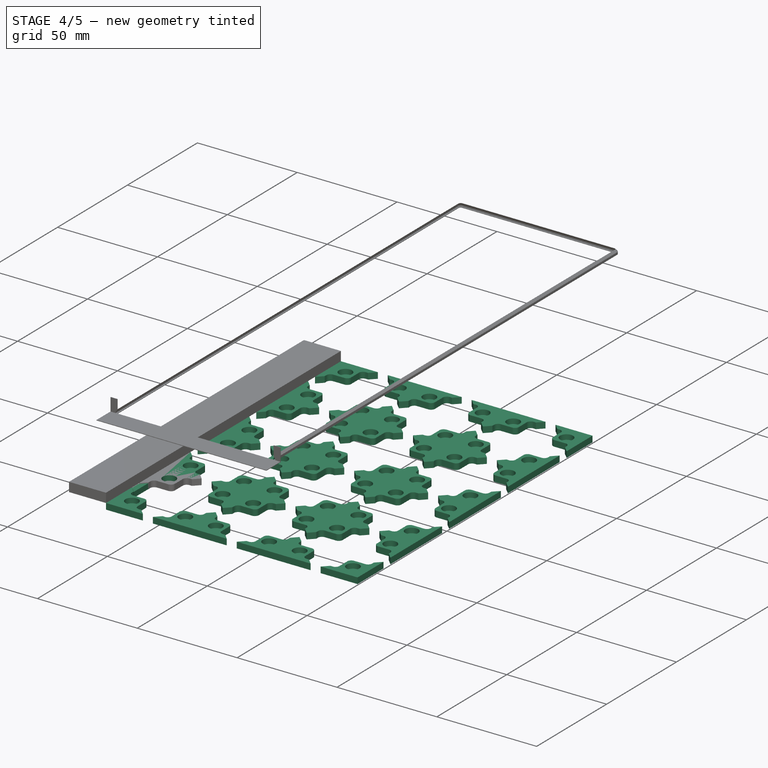
[diagram: stage 4 of 5 — iso view after this stage's code; geometry added in this stage tinted green]
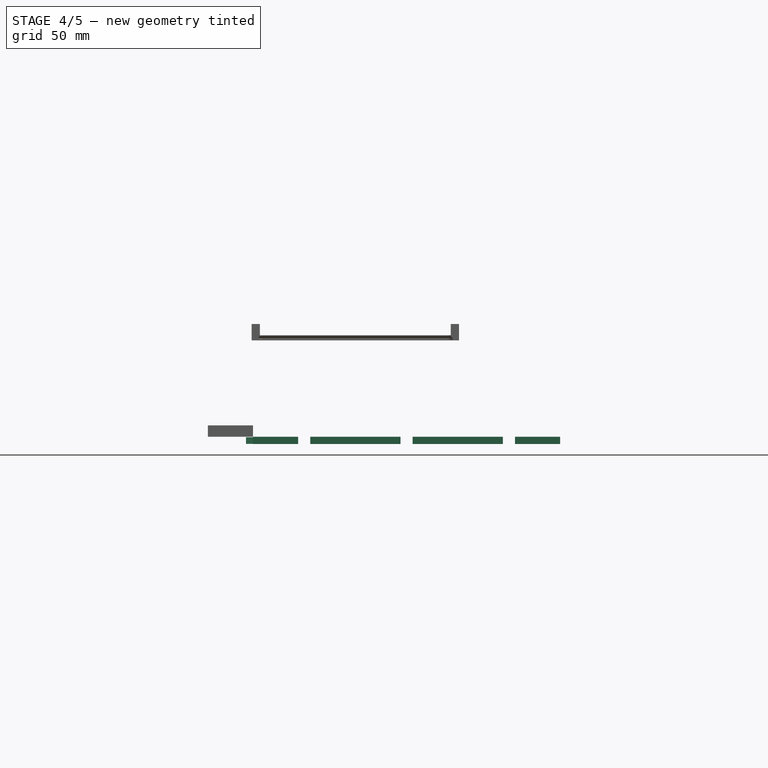
[diagram: stage 4 of 5 — front view after this stage's code; geometry added in this stage tinted green]
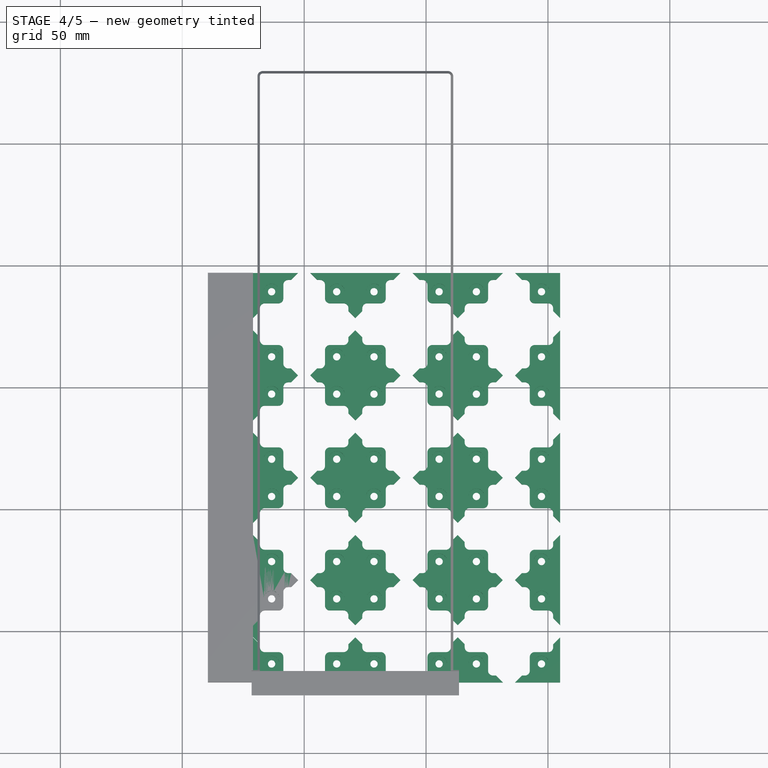
[diagram: stage 4 of 5 — top view after this stage's code; geometry added in this stage tinted green]
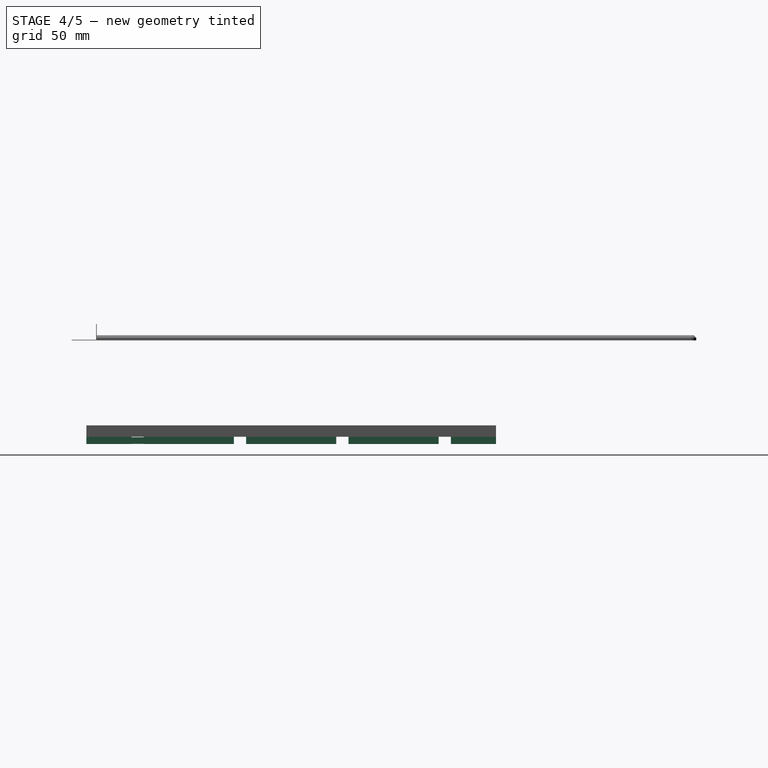
[diagram: stage 4 of 5 — right view after this stage's code; geometry added in this stage tinted green]
FEATURE [PartDesign::SubShapeBinder] Binder003
  BindCopyOnChange = 0
  BindMode = 0
  ClaimChildren = false
  Context = -> Part [Body005.Binder003.]
  Fuse = false
  MakeFace = true
  OffsetFill = false
  OffsetIntersection = false
  OffsetJoinType = 0
  OffsetOpenResult = false
  PartialLoad = false
  Refine = true
  Relative = true
  Support = -> [Body001[Sketch007.]]
  _Version = 2
FEATURE [Sketcher::SketchObject] Sketch008
  ArcFitTolerance = 1e-06
  AttachmentOffset = pos=(0,0,-4.9) rot=(0,0,1;0rad)
  AttachmentSupport = -> [XY_Plane006]
  FullyConstrained = false
  MakeInternals = false
  MapMode = 5
  Placement = pos=(0,0,-4.9) rot=(0,0,1;0rad)
  expr: .AttachmentOffset.Base.z = -4.65 mm - 0.5 mm + 0.25 mm
  sketch-geometry (6):
    g0: LineSegment StartX=-21 StartY=0 StartZ=0 EndX=-21 EndY=2.32 EndZ=0
    g1: LineSegment StartX=-21 StartY=2.32 StartZ=0 EndX=-18.1498 EndY=5.17018 EndZ=0
    g2: LineSegment StartX=-18.1498 StartY=5.17018 StartZ=0 EndX=-18.1498 EndY=0 EndZ=0
    g3: LineSegment StartX=-21 StartY=0 StartZ=0 EndX=-21 EndY=-2.3 EndZ=0
    g4: LineSegment StartX=-21 StartY=-2.3 StartZ=0 EndX=-18.1498 EndY=-5.15018 EndZ=0
    g5: LineSegment StartX=-18.1498 StartY=-5.15018 StartZ=0 EndX=-18.1498 EndY=0 EndZ=0
  constraints (14):
    c: PointOnObject(g0,g-1)
    c: Vertical(g0)
    c: PointOnObject(g2,g-1)
    c: Vertical(g2)
    c: Parallel(g1,g-3)
    c: Vertical(g1,g-3)
    c: Vertical(g1,g-3)
    c: Coincident(g0,g1)
    c: Coincident(g2,g1)
    c: DistanceY(g1,g-3) = 0.18
    c: Vertical(g3)
    c: Vertical(g5)
    c: Coincident(g3,g4)
    c: Coincident(g5,g4)
FEATURE [PartDesign::Pad] Pad002
  Direction = (0,0,1)
  Length = 2.7
  Length2 = 10
  Profile = -> Sketch008
  ReferenceAxis = -> Sketch008 [N_Axis]
  Refine = true
  Reversed = true
  Suppressed = false
  Type = 0
  expr: Length = 2.7 mm
FEATURE [PartDesign::Plane] DatumPlane
  AttachmentSupport = -> [Pad002]
  Length = 60
  MapMode = 5
  Placement = pos=(-21,0,0) rot=(0.57735,-0.57735,-0.57735;2.0944rad)
  ResizeMode = 0
  Width = 60
FEATURE [PartDesign::Mirrored] Mirrored
  BaseFeature = -> Pad002
  MirrorPlane = -> DatumPlane
  Originals = -> [Pad002]
  Refine = true
  Suppressed = false
  TransformMode = 0
FEATURE [PartDesign::Body] Body005  label="Butterfly"
  AllowCompound = true
  Group = -> [Binder003,Sketch008,Pad002,DatumPlane,Mirrored,Chamfer]
  Origin = -> Origin006
  Tip = -> Chamfer
FEATURE [Sketcher::SketchObject] Sketch009
  ArcFitTolerance = 1e-06
  AttachmentSupport = -> [Pad001]
  ExternalGeometry = -> [Pad001]
  FullyConstrained = true
  MakeInternals = false
  MapMode = 5
  Placement = pos=(0,0,-4.65) rot=(0,0,1;0rad)
  sketch-geometry (1):
    g0: Circle CenterX=-13.35 CenterY=13.35 CenterZ=0 NormalX=0 NormalY=0 NormalZ=1 AngleXU=0 Radius=3.25
  constraints (2):
    c: Diameter(g0) = 6.5
    c: Coincident(g0,g-3)
FEATURE [PartDesign::Pocket] Pocket
  BaseFeature = -> Pad001
  Direction = (0,0,-1)
  Length = 2.5
  Length2 = 5
  Profile = -> Sketch009
  ReferenceAxis = -> Sketch009 [N_Axis]
  Refine = true
  Suppressed = false
  Type = 0
FEATURE [PartDesign::Fillet] Fillet
  Base = -> Pocket [Edge26,Edge25,Edge23]
  BaseFeature = -> Pocket
  Radius = 2
  Refine = true
  SupportTransform = false
  Suppressed = false
  UseAllEdges = false
FEATURE [PartDesign::PolarPattern] PolarPattern
  Angle = 360
  Axis = -> Sketch007 [N_Axis]
  Mode = 0
  Occurrences = 4
  Offset = 120
  Refine = true
  Suppressed = false
  TransformMode = 0
FEATURE [PartDesign::LinearPattern] LinearPattern004
  Direction = -> X_Axis002
  Length = 84
  Mode = 1
  Occurrences = 3
  Offset = 42
  Refine = true
  Suppressed = false
  TransformMode = 0
  expr: Occurrences = VarSet.BasePlateGridX
  expr: Offset = VarSet.GridSize
FEATURE [PartDesign::LinearPattern] LinearPattern005
  Direction = -> Y_Axis002
  Length = 126
  Mode = 1
  Occurrences = 4
  Offset = 42
  Refine = true
  Suppressed = false
  TransformMode = 0
  expr: Occurrences = VarSet.BasePlateGridY
  expr: Offset = VarSet.GridSize
FEATURE [PartDesign::MultiTransform] MultiTransform002
  BaseFeature = -> Fillet
  Originals = -> [Pad001,Pocket,Fillet]
  Refine = true
  Suppressed = false
  TransformMode = 0
  Transformations = -> [PolarPattern,LinearPattern004,LinearPattern005]
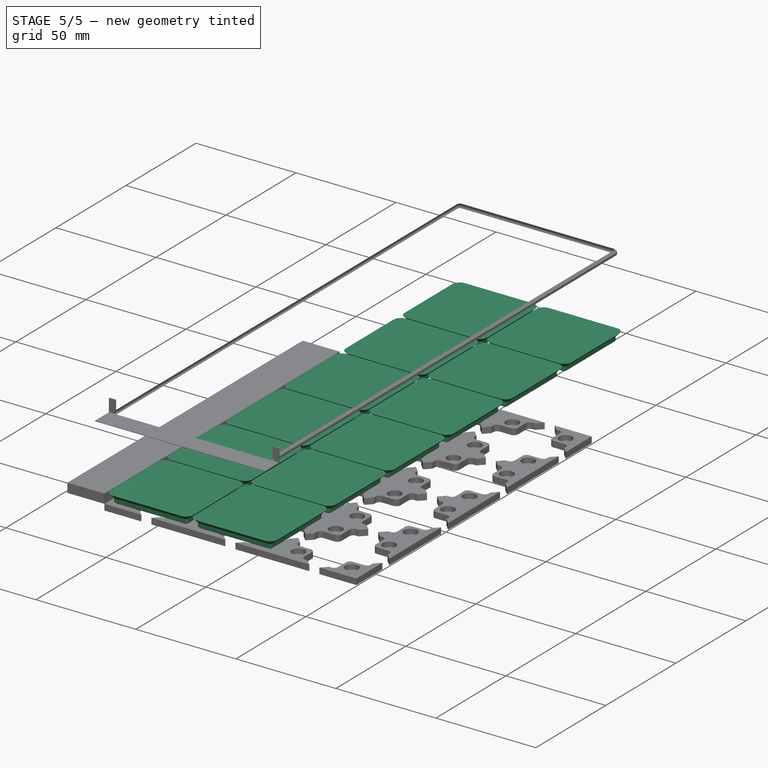
[diagram: stage 5 of 5 — iso view after this stage's code; geometry added in this stage tinted green]
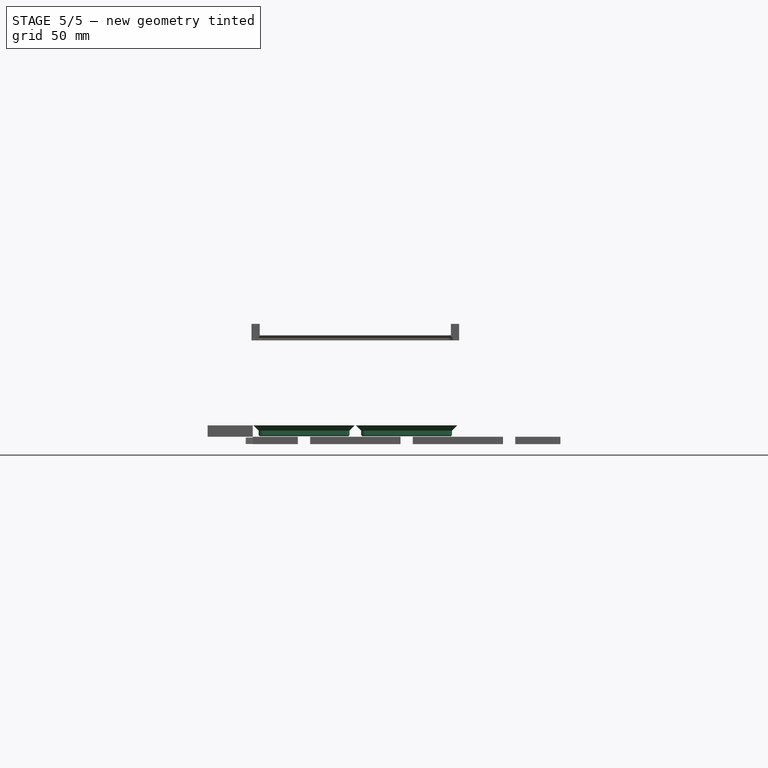
[diagram: stage 5 of 5 — front view after this stage's code; geometry added in this stage tinted green]
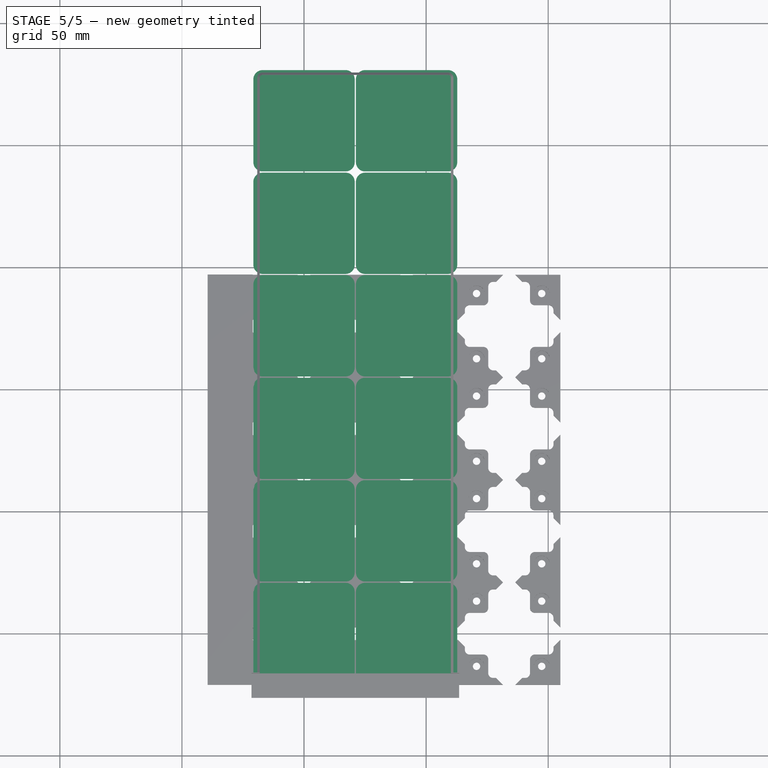
[diagram: stage 5 of 5 — top view after this stage's code; geometry added in this stage tinted green]
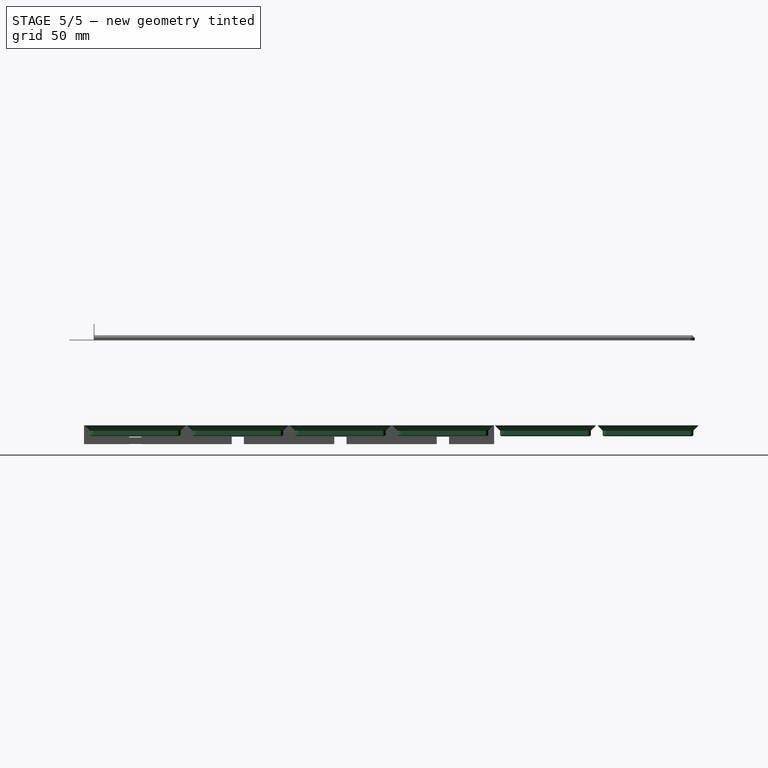
[diagram: stage 5 of 5 — right view after this stage's code; geometry added in this stage tinted green]
FEATURE [PartDesign::Body] Body  label="Baseplate"
  AllowCompound = true
  Group = -> [Sketch,Sketch001,Sketch002,Pad,SubtractivePipe,MultiTransform,LinearPattern,LinearPattern001]
  Origin = -> Origin001
  Tip = -> MultiTransform
FEATURE [PartDesign::SubShapeBinder] Binder
  BindCopyOnChange = 0
  BindMode = 0
  ClaimChildren = false
  Context = -> Part [Body002.Binder.]
  Fuse = false
  MakeFace = true
  OffsetFill = false
  OffsetIntersection = false
  OffsetJoinType = 0
  OffsetOpenResult = false
  PartialLoad = false
  Refine = true
  Relative = true
  Support = -> [Body[Sketch.]]
  _Version = 2
FEATURE [PartDesign::SubShapeBinder] Binder001
  BindCopyOnChange = 0
  BindMode = 0
  ClaimChildren = false
  Context = -> Part [Body002.Binder001.]
  Fuse = false
  MakeFace = true
  OffsetFill = false
  OffsetIntersection = false
  OffsetJoinType = 0
  OffsetOpenResult = false
  PartialLoad = false
  Refine = true
  Relative = true
  Support = -> [Body[Sketch001.]]
  _Version = 2
FEATURE [Sketcher::SketchObject] Sketch003  label="BigFootProfileXZ"
  ArcFitTolerance = 1e-06
  AttachmentSupport = -> [XZ_Plane003]
  ExternalGeometry = -> [Binder001,Binder]
  FullyConstrained = true
  MakeInternals = false
  MapMode = 5
  Placement = pos=(0,0,0) rot=(1,0,0;1.5708rad)
  expr: Constraints[11] = VarSet.BinOffset
  sketch-geometry (5):
    g0: LineSegment StartX=-20.75 StartY=0 StartZ=0 EndX=-18.6 EndY=-2.15 EndZ=0
    g1: LineSegment StartX=-18.6 StartY=-2.15 StartZ=0 EndX=-18.6 EndY=-3.95 EndZ=0
    g2: LineSegment StartX=-18.6 StartY=-3.95 StartZ=0 EndX=-18.15 EndY=-4.4 EndZ=0
    g3: LineSegment StartX=-18.15 StartY=-4.4 StartZ=0 EndX=-18.15 EndY=0 EndZ=0
    g4: LineSegment StartX=-18.15 StartY=0 StartZ=0 EndX=-20.75 EndY=0 EndZ=0
  constraints (17):
    c: Coincident(g0,g1)
    c: Coincident(g1,g2)
    c: Coincident(g2,g3)
    c: Coincident(g3,g4)
    c: Coincident(g4,g0)
    c: Horizontal(g4)
    c: Vertical(g3)
    c: Vertical(g1)
    c: Parallel(g-4,g0)
    c: Parallel(g0,g2)
    c: PointOnObject(g0,g-3)
    c: DistanceX(g-4,g0) = 0.25
    c: Horizontal(g0,g-4)
    c: Horizontal(g1,g-5)
    c: Vertical(g2,g-5)
    c: DistanceY(g2,g3) = 4.4
    c: DistanceY(g2,g0) = 2.25
FEATURE [Sketcher::SketchObject] Sketch004  label="BigFootProfileXY"
  ArcFitTolerance = 1e-06
  AttachmentSupport = -> [XY_Plane003]
  ExternalGeometry = -> [Binder001,Sketch003]
  FullyConstrained = true
  MakeInternals = false
  MapMode = 5
  sketch-geometry (10):
    g0: LineSegment StartX=-17 StartY=-20.75 StartZ=0 EndX=17 EndY=-20.75 EndZ=0
    g1: LineSegment StartX=20.75 StartY=-17 StartZ=0 EndX=20.75 EndY=17 EndZ=0
    g2: LineSegment StartX=17 StartY=20.75 StartZ=0 EndX=-17 EndY=20.75 EndZ=0
    g3: LineSegment StartX=-20.75 StartY=17 StartZ=0 EndX=-20.75 EndY=-17 EndZ=0
    g4: ArcOfCircle CenterX=-17 CenterY=-17 CenterZ=0 NormalX=0 NormalY=0 NormalZ=1 AngleXU=0 Radius=3.75 StartAngle=3.14159 EndAngle=4.71239
    g5: ArcOfCircle CenterX=17 CenterY=-17 CenterZ=0 NormalX=0 NormalY=0 NormalZ=1 AngleXU=0 Radius=3.75 StartAngle=4.71239 EndAngle=6.28319
    g6: ArcOfCircle CenterX=17 CenterY=17 CenterZ=0 NormalX=0 NormalY=0 NormalZ=1 AngleXU=0 Radius=3.75 StartAngle=0 EndAngle=1.5708
    g7: ArcOfCircle CenterX=-17 CenterY=17 CenterZ=0 NormalX=0 NormalY=0 NormalZ=1 AngleXU=0 Radius=3.75 StartAngle=1.5708 EndAngle=3.14159
    g8: GeomPoint [constr] X=20.75 Y=20.75 Z=0
    g9: GeomPoint [constr] X=0 Y=0 Z=0
  constraints (20):
    c: Tangent(g0,g4) = -1.5708
    c: Tangent(g0,g5) = -1.5708
    c: Tangent(g1,g5) = -1.5708
    c: Tangent(g1,g6) = -1.5708
    c: Tangent(g2,g6) = -1.5708
    c: Tangent(g2,g7) = -1.5708
    c: Tangent(g3,g7) = -1.5708
    c: Tangent(g3,g4) = -1.5708
    c: Horizontal(g0)
    c: Horizontal(g2)
    c: Vertical(g1)
    c: Vertical(g3)
    c: Equal(g4,g5)
    c: Equal(g5,g6)
    c: Symmetric(g2,g0,g9)
    c: PointOnObject(g8,g1)
    c: PointOnObject(g8,g2)
    c: Coincident(g9,g-1)
    c: Symmetric(g3,g3,g-4)
    c: Coincident(g4,g-3)
FEATURE [PartDesign::AdditivePipe] AdditivePipe
  AuxilleryCurvelinear = true
  AuxillerySpineTangent = false
  Binormal = (0,0,0)
  Mode = 0
  Placement = pos=(0,0,0) rot=(1,0,0;1.5708rad)
  Profile = -> Sketch003
  Refine = true
  Spine = -> Sketch004
  SpineTangent = false
  Suppressed = false
  Transformation = 0
  Transition = 0
FEATURE [Sketcher::SketchObject] Sketch005  label="BigFootInfillXY"
  ArcFitTolerance = 1e-06
  AttachmentSupport = -> [XY_Plane003]
  ExternalGeometry = -> [AdditivePipe]
  FullyConstrained = true
  MakeInternals = false
  MapMode = 5
  sketch-geometry (10):
    g0: LineSegment StartX=-17 StartY=-18.15 StartZ=0 EndX=17 EndY=-18.15 EndZ=0
    g1: LineSegment StartX=18.15 StartY=-17 StartZ=0 EndX=18.15 EndY=17 EndZ=0
    g2: LineSegment StartX=17 StartY=18.15 StartZ=0 EndX=-17 EndY=18.15 EndZ=0
    g3: LineSegment StartX=-18.15 StartY=17 StartZ=0 EndX=-18.15 EndY=-17 EndZ=0
    g4: ArcOfCircle CenterX=-17 CenterY=-17 CenterZ=0 NormalX=0 NormalY=0 NormalZ=1 AngleXU=0 Radius=1.15 StartAngle=3.14159 EndAngle=4.71239
    g5: ArcOfCircle CenterX=17 CenterY=-17 CenterZ=0 NormalX=0 NormalY=0 NormalZ=1 AngleXU=0 Radius=1.15 StartAngle=4.71239 EndAngle=6.28319
    g6: ArcOfCircle CenterX=17 CenterY=17 CenterZ=0 NormalX=0 NormalY=0 NormalZ=1 AngleXU=0 Radius=1.15 StartAngle=0 EndAngle=1.5708
    g7: ArcOfCircle CenterX=-17 CenterY=17 CenterZ=0 NormalX=0 NormalY=0 NormalZ=1 AngleXU=0 Radius=1.15 StartAngle=1.5708 EndAngle=3.14159
    g8: GeomPoint [constr] X=18.15 Y=18.15 Z=0
    g9: GeomPoint [constr] X=0 Y=0 Z=0
  constraints (21):
    c: Tangent(g0,g4) = -1.5708
    c: Tangent(g0,g5) = -1.5708
    c: Tangent(g1,g5) = -1.5708
    c: Tangent(g1,g6) = -1.5708
    c: Tangent(g2,g6) = -1.5708
    c: Tangent(g2,g7) = -1.5708
    c: Tangent(g3,g7) = -1.5708
    c: Tangent(g3,g4) = -1.5708
    c: Horizontal(g0)
    c: Horizontal(g2)
    c: Vertical(g1)
    c: Vertical(g3)
    c: Equal(g4,g5)
    c: Equal(g5,g6)
    c: Equal(g6,g7)
    c: Symmetric(g2,g0,g9)
    c: PointOnObject(g8,g1)
    c: PointOnObject(g8,g2)
    c: Coincident(g9,g-1)
    c: Equal(g2,g3)
    c: Coincident(g3,g-3)
FEATURE [Sketcher::SketchObject] Sketch006  label="BigFootInfillXZ"
  ArcFitTolerance = 1e-06
  AttachmentSupport = -> [XZ_Plane003]
  ExternalGeometry = -> [Sketch003]
  FullyConstrained = false
  MakeInternals = false
  MapMode = 5
  Placement = pos=(0,0,0) rot=(1,0,0;1.5708rad)
  sketch-geometry (1):
    g0: LineSegment StartX=-18.15 StartY=0 StartZ=0 EndX=-18.15 EndY=-4.41 EndZ=0
  constraints (2):
    c: Coincident(g0,g-3)
    c: Vertical(g0)
FEATURE [PartDesign::AdditivePipe] AdditivePipe001
  AuxilleryCurvelinear = true
  AuxillerySpineTangent = false
  BaseFeature = -> AdditivePipe
  Binormal = (0,0,0)
  Mode = 0
  Placement = pos=(0,0,0) rot=(1,0,0;1.5708rad)
  Profile = -> Sketch005
  Refine = true
  Spine = -> Sketch006
  SpineTangent = false
  Suppressed = false
  Transformation = 0
  Transition = 0
FEATURE [PartDesign::LinearPattern] LinearPattern002
  Direction = -> X_Axis003
  Length = 42
  Mode = 1
  Occurrences = 2
  Offset = 42
  Placement = pos=(0,0,0) rot=(1,0,0;1.5708rad)
  Refine = true
  Suppressed = false
  TransformMode = 0
  expr: Occurrences = VarSet.BinFootGridX
  expr: Offset = VarSet.GridSize
FEATURE [PartDesign::LinearPattern] LinearPattern003
  Direction = -> Y_Axis003
  Length = 210
  Mode = 1
  Occurrences = 6
  Offset = 42
  Placement = pos=(0,0,0) rot=(1,0,0;1.5708rad)
  Refine = true
  Suppressed = false
  TransformMode = 0
  expr: Occurrences = VarSet.BinFootGridY
  expr: Offset = VarSet.GridSize
FEATURE [PartDesign::MultiTransform] MultiTransform001
  BaseFeature = -> AdditivePipe001
  Originals = -> [AdditivePipe001,AdditivePipe]
  Placement = pos=(0,0,0) rot=(1,0,0;1.5708rad)
  Refine = true
  Suppressed = false
  TransformMode = 0
  Transformations = -> [LinearPattern002,LinearPattern003]
FEATURE [PartDesign::Chamfer] Chamfer
  Angle = 45
  Base = -> Mirrored [Edge17,Edge6,Edge3,Edge15]
  BaseFeature = -> Mirrored
  ChamferType = 0
  FlipDirection = false
  Refine = true
  Size = 0.25
  Size2 = 1
  SupportTransform = false
  Suppressed = false
  UseAllEdges = false
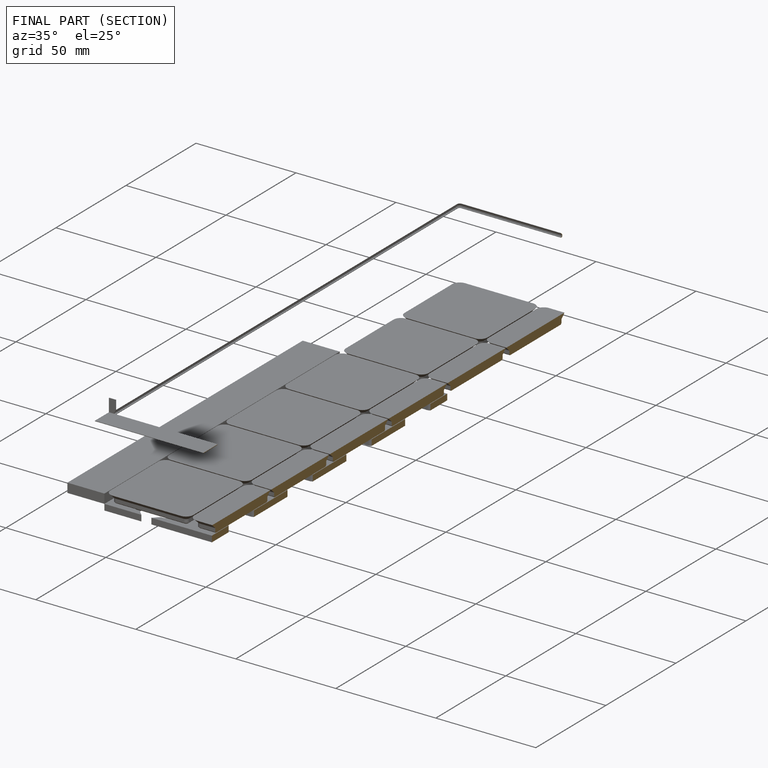
[diagram: finished part — half-section view (interior)]
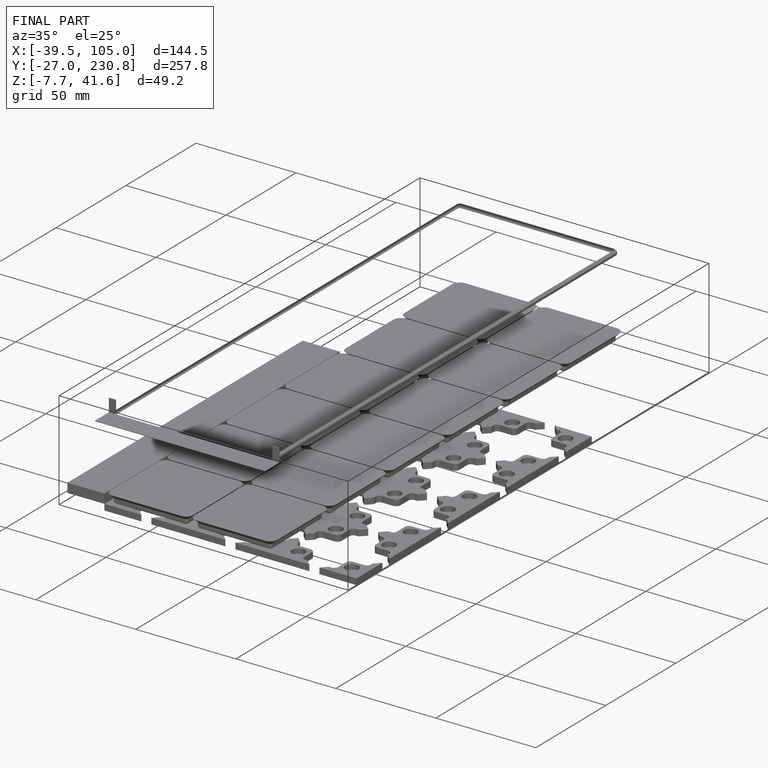
[diagram: finished part — iso view with bounding-box wireframe]
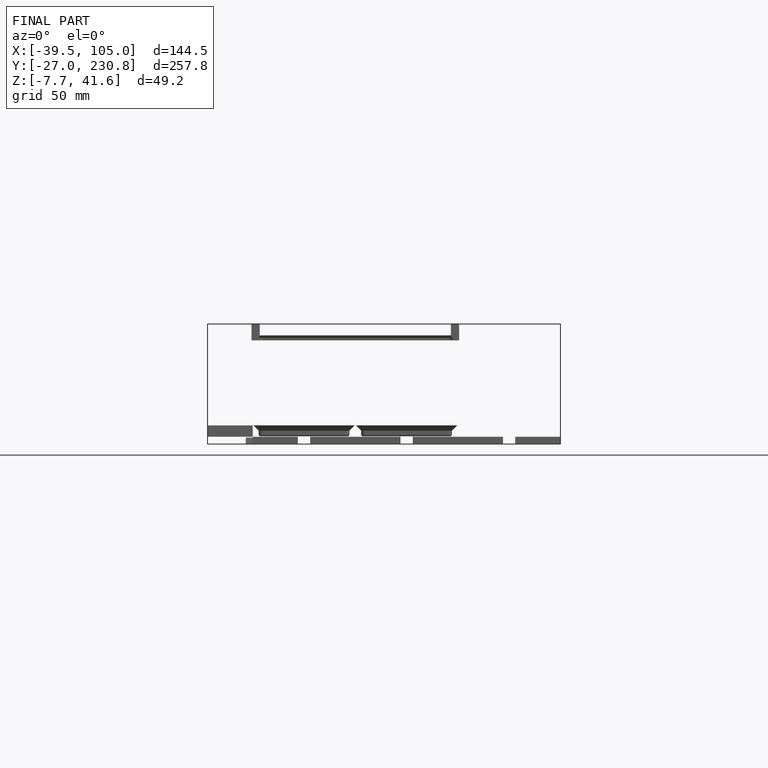
[diagram: finished part — front view with bounding-box wireframe]
